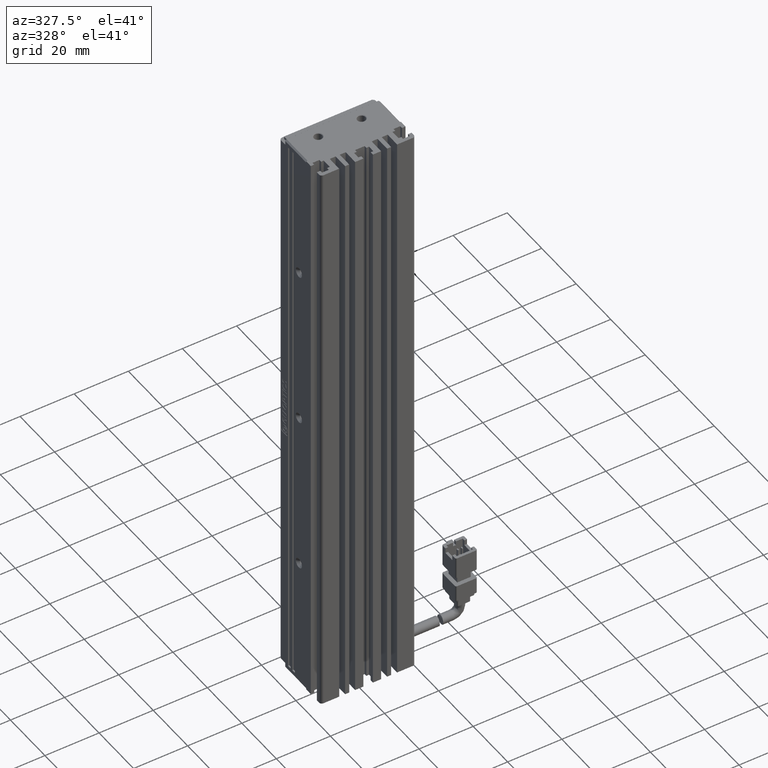
[diagram: clean part render]
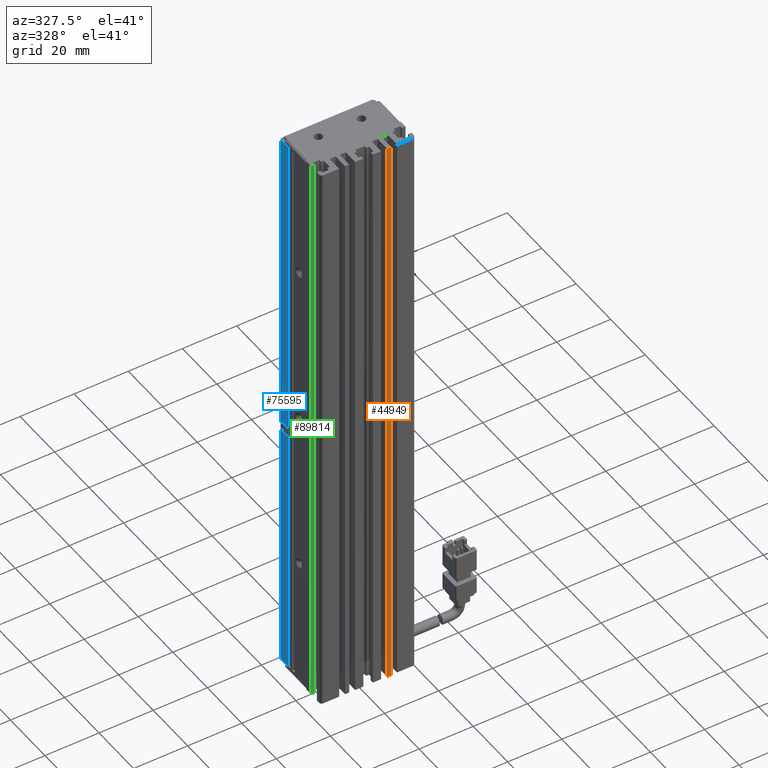
[diagram: same view with three faces highlighted in distinct colors, each labeled with its STEP entity id]
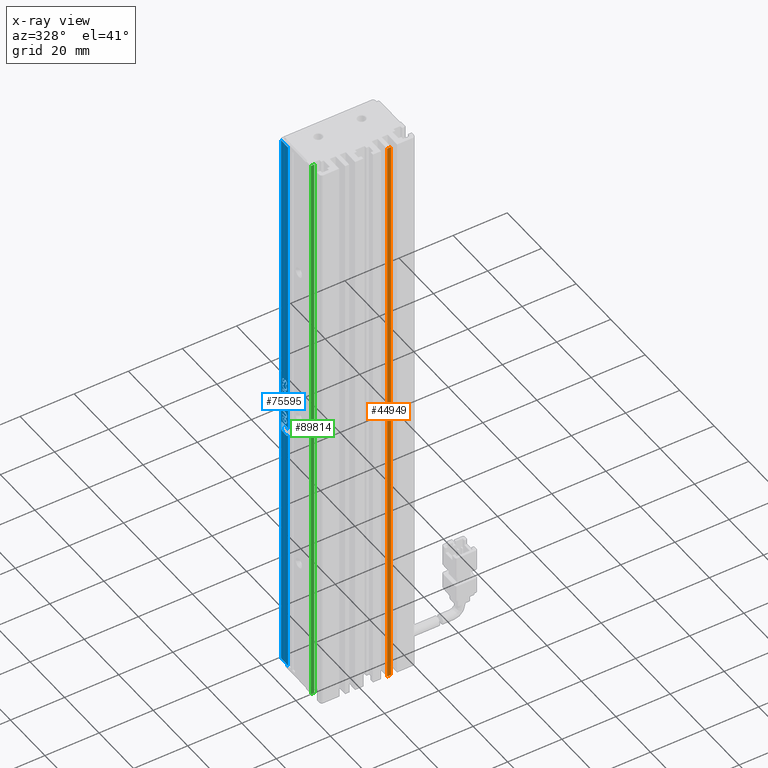
[diagram: x-ray of the same camera — body ghosted, the three highlighted faces saturated]
A machine part, auxiliary view with three faces highlighted in distinct colors.
The next image is the same camera in x-ray (body ghosted, the three faces saturated) — at least one of them is partly hidden behind the body in this view.
Their STEP definitions:

[orange] entity #44949 — the highlighted planar face has unit normal (0, 1, 0).
#227 = EDGE_CURVE ( 'NONE', #54300, #3280, #14841, .T. ) ;
#3280 = VERTEX_POINT ( 'NONE', #76385 ) ;
#5404 = FACE_OUTER_BOUND ( 'NONE', #55401, .T. ) ;
#7070 = DIRECTION ( 'NONE',  ( 0.0000000000000000000, -0.0000000000000000000, 1.000000000000000000 ) ) ;
#9142 = LINE ( 'NONE', #42142, #54022 ) ;
#10304 = CARTESIAN_POINT ( 'NONE',  ( 49.42537974683541800, 10.99073232304837000, -224.0000000000000000 ) ) ;
#14071 = DIRECTION ( 'NONE',  ( 0.0000000000000000000, 0.0000000000000000000, 1.000000000000000000 ) ) ;
#14841 = LINE ( 'NONE', #43643, #19188 ) ;
#17118 = CARTESIAN_POINT ( 'NONE',  ( 49.42537974683541800, 10.99073232304837000, -6.000000000000005300 ) ) ;
#19188 = VECTOR ( 'NONE', #50421, 1000.000000000000000 ) ;
#20732 = EDGE_CURVE ( 'NONE', #63833, #54300, #65136, .T. ) ;
#22604 = ORIENTED_EDGE ( 'NONE', *, *, #84309, .F. ) ;
#23053 = AXIS2_PLACEMENT_3D ( 'NONE', #63649, #70041, #7070 ) ;
#31184 = CARTESIAN_POINT ( 'NONE',  ( 47.92537974683541800, 10.99073232304837000, -6.000000000000005300 ) ) ;
#31210 = ORIENTED_EDGE ( 'NONE', *, *, #20732, .F. ) ;
#34853 = CARTESIAN_POINT ( 'NONE',  ( 47.92537974683541800, 10.99073232304837000, -6.000000000000005300 ) ) ;
#36420 = CARTESIAN_POINT ( 'NONE',  ( 47.92537974683541800, 10.99073232304837000, -224.0000000000000000 ) ) ;
#42142 = CARTESIAN_POINT ( 'NONE',  ( 40.92537974683542500, 10.99073232304837000, -224.0000000000000000 ) ) ;
#42746 = DIRECTION ( 'NONE',  ( -1.000000000000000000, -0.0000000000000000000, 0.0000000000000000000 ) ) ;
#43136 = PLANE ( 'NONE',  #23053 ) ;
#43643 = CARTESIAN_POINT ( 'NONE',  ( 40.92537974683542500, 10.99073232304837000, -6.000000000000005300 ) ) ;
#44004 = ORIENTED_EDGE ( 'NONE', *, *, #227, .F. ) ;
#44949 = ADVANCED_FACE ( 'NONE', ( #5404 ), #43136, .F. ) ;
#50421 = DIRECTION ( 'NONE',  ( 1.000000000000000000, 0.0000000000000000000, -0.0000000000000000000 ) ) ;
#54022 = VECTOR ( 'NONE', #42746, 1000.000000000000000 ) ;
#54300 = VERTEX_POINT ( 'NONE', #31184 ) ;
#55083 = LINE ( 'NONE', #17118, #90034 ) ;
#55401 = EDGE_LOOP ( 'NONE', ( #85317, #44004, #31210, #22604 ) ) ;
#59746 = VERTEX_POINT ( 'NONE', #10304 ) ;
#63649 = CARTESIAN_POINT ( 'NONE',  ( 40.92537974683542500, 10.99073232304837000, -6.000000000000005300 ) ) ;
#63833 = VERTEX_POINT ( 'NONE', #36420 ) ;
#63921 = EDGE_CURVE ( 'NONE', #59746, #3280, #55083, .T. ) ;
#65136 = LINE ( 'NONE', #34853, #80421 ) ;
#66112 = DIRECTION ( 'NONE',  ( 0.0000000000000000000, 0.0000000000000000000, 1.000000000000000000 ) ) ;
#70041 = DIRECTION ( 'NONE',  ( 0.0000000000000000000, 1.000000000000000000, 0.0000000000000000000 ) ) ;
#76385 = CARTESIAN_POINT ( 'NONE',  ( 49.42537974683541800, 10.99073232304837000, -6.000000000000005300 ) ) ;
#80421 = VECTOR ( 'NONE', #14071, 1000.000000000000000 ) ;
#84309 = EDGE_CURVE ( 'NONE', #59746, #63833, #9142, .T. ) ;
#85317 = ORIENTED_EDGE ( 'NONE', *, *, #63921, .T. ) ;
#90034 = VECTOR ( 'NONE', #66112, 1000.000000000000000 ) ;

[blue] entity #75595 — the highlighted planar face has unit normal (-1, 0, 0).
#159 = LINE ( 'NONE', #34016, #70185 ) ;
#267 = CARTESIAN_POINT ( 'NONE',  ( 23.42537974683542100, 31.96109976776472500, -108.9810248200882500 ) ) ;
#347 = B_SPLINE_CURVE_WITH_KNOTS ( 'NONE', 3,
 ( #15714, #30950, #23626, #64993 ),
 .UNSPECIFIED., .F., .F.,
 ( 4, 4 ),
 ( 0.0000000000000000000, 1.000000000000000000 ),
 .UNSPECIFIED. ) ;
#469 = CARTESIAN_POINT ( 'NONE',  ( 23.42537974683542100, 30.69365790729960300, -116.2814574863944000 ) ) ;
#688 = CARTESIAN_POINT ( 'NONE',  ( 23.42537974683542100, 31.37189614418444700, -108.9665575404777900 ) ) ;
#816 = CARTESIAN_POINT ( 'NONE',  ( 23.42537974683542100, 31.60063465148565200, -107.1044023214401300 ) ) ;
#882 = EDGE_CURVE ( 'NONE', #60192, #37922, #47448, .T. ) ;
#988 = B_SPLINE_CURVE_WITH_KNOTS ( 'NONE', 3,
 ( #49004, #70017, #28061, #77017 ),
 .UNSPECIFIED., .F., .F.,
 ( 4, 4 ),
 ( 6.000000000000000000, 7.000000000000000000 ),
 .UNSPECIFIED. ) ;
#1222 = ORIENTED_EDGE ( 'NONE', *, *, #75533, .F. ) ;
#1351 = VECTOR ( 'NONE', #35808, 1000.000000000000000 ) ;
#1425 = FACE_BOUND ( 'NONE', #30243, .T. ) ;
#1809 = VERTEX_POINT ( 'NONE', #41024 ) ;
#1873 = VERTEX_POINT ( 'NONE', #34277 ) ;
#2117 = EDGE_CURVE ( 'NONE', #60896, #64137, #50337, .T. ) ;
#2183 = LINE ( 'NONE', #8172, #53677 ) ;
#2224 = EDGE_CURVE ( 'NONE', #47304, #42420, #46846, .T. ) ;
#2454 = CARTESIAN_POINT ( 'NONE',  ( 23.42537974683542100, 31.15096591162624400, -121.5570794442092900 ) ) ;
#2531 = CARTESIAN_POINT ( 'NONE',  ( 23.42537974683542100, 33.24016953520655400, -119.0692481840687800 ) ) ;
#2617 = VECTOR ( 'NONE', #17995, 1000.000000000000000 ) ;
#2819 = CARTESIAN_POINT ( 'NONE',  ( 23.42537974683542100, 32.18203000032293200, -120.9892725215486100 ) ) ;
#3160 = EDGE_LOOP ( 'NONE', ( #13812, #33364, #55384, #13626, #29938, #13358, #30972, #90273 ) ) ;
#3593 = EDGE_CURVE ( 'NONE', #21146, #13146, #12191, .T. ) ;
#3840 = LINE ( 'NONE', #41936, #9303 ) ;
#3956 = CARTESIAN_POINT ( 'NONE',  ( 23.42537974683542100, 32.49598348869494700, -105.2168955610293000 ) ) ;
#4298 = CARTESIAN_POINT ( 'NONE',  ( 23.42537974683542100, 33.99073232304837700, -222.0000000000000000 ) ) ;
#4388 = CARTESIAN_POINT ( 'NONE',  ( 23.42537974683542100, 30.17471088155887000, -124.4911980244126100 ) ) ;
#4985 = CARTESIAN_POINT ( 'NONE',  ( 23.42537974683542100, 30.17471088155887000, -124.0426035368832300 ) ) ;
#5940 = VERTEX_POINT ( 'NONE', #8283 ) ;
#6129 = ORIENTED_EDGE ( 'NONE', *, *, #66371, .F. ) ;
#6218 = B_SPLINE_CURVE_WITH_KNOTS ( 'NONE', 3,
 ( #6262, #55540, #20255, #13563 ),
 .UNSPECIFIED., .F., .F.,
 ( 4, 4 ),
 ( 4.000000000000000000, 5.000000000000000000 ),
 .UNSPECIFIED. ) ;
#6262 = CARTESIAN_POINT ( 'NONE',  ( 23.42537974683542100, 32.58900674450889300, -107.0501162208454200 ) ) ;
#6341 = LINE ( 'NONE', #89532, #86175 ) ;
#6525 = CARTESIAN_POINT ( 'NONE',  ( 23.42537974683542100, 31.01923930264848700, -106.1823498606506700 ) ) ;
#6705 = CARTESIAN_POINT ( 'NONE',  ( 23.42537974683542100, 32.75943670665056800, -107.9469523484821100 ) ) ;
#6758 = LINE ( 'NONE', #30101, #41746 ) ;
#6907 = VERTEX_POINT ( 'NONE', #24663 ) ;
#7277 = CARTESIAN_POINT ( 'NONE',  ( 23.42537974683542100, 29.99073232304837300, -6.000000000000005300 ) ) ;
#7408 = B_SPLINE_CURVE_WITH_KNOTS ( 'NONE', 3,
 ( #44797, #64698, #37100, #23001 ),
 .UNSPECIFIED., .F., .F.,
 ( 4, 4 ),
 ( 1.000000000000000000, 2.000000000000000000 ),
 .UNSPECIFIED. ) ;
#7623 = LINE ( 'NONE', #78476, #63455 ) ;
#7707 = CARTESIAN_POINT ( 'NONE',  ( 23.42537974683542100, 31.24398916744019400, -120.1323228190066000 ) ) ;
#7831 = CARTESIAN_POINT ( 'NONE',  ( 23.42537974683542100, 30.69365790729960300, -119.6116359612456400 ) ) ;
#8017 = CARTESIAN_POINT ( 'NONE',  ( 23.42537974683542100, 33.24016953520655400, -110.3261438033223400 ) ) ;
#8019 = B_SPLINE_CURVE_WITH_KNOTS ( 'NONE', 3,
 ( #89973, #27200, #21096, #27496 ),
 .UNSPECIFIED., .F., .F.,
 ( 4, 4 ),
 ( 10.00000000000000000, 11.00000000000000000 ),
 .UNSPECIFIED. ) ;
#8023 = DIRECTION ( 'NONE',  ( -0.0000000000000000000, -0.0000000000000000000, -1.000000000000000000 ) ) ;
#8172 = CARTESIAN_POINT ( 'NONE',  ( 23.42537974683542100, 32.18203000032293200, -122.1716684112184600 ) ) ;
#8240 = ORIENTED_EDGE ( 'NONE', *, *, #89939, .F. ) ;
#8283 = CARTESIAN_POINT ( 'NONE',  ( 23.42537974683542100, 31.03086720962521700, -108.2542130299314400 ) ) ;
#8581 = VERTEX_POINT ( 'NONE', #50258 ) ;
#8638 = CARTESIAN_POINT ( 'NONE',  ( 23.42537974683542100, 31.67040209334614400, -120.1323228190066000 ) ) ;
#8798 = CARTESIAN_POINT ( 'NONE',  ( 23.42537974683542100, 31.98435558171818700, -109.5125283355021300 ) ) ;
#8808 = EDGE_CURVE ( 'NONE', #83490, #37456, #20410, .T. ) ;
#9067 = VECTOR ( 'NONE', #54742, 1000.000000000000000 ) ;
#9265 = CARTESIAN_POINT ( 'NONE',  ( 23.42537974683542100, 31.16259381860297100, -109.4764277405858100 ) ) ;
#9280 = VERTEX_POINT ( 'NONE', #30149 ) ;
#9303 = VECTOR ( 'NONE', #49054, 1000.000000000000000 ) ;
#9508 = VERTEX_POINT ( 'NONE', #39916 ) ;
#9658 = CARTESIAN_POINT ( 'NONE',  ( 23.42537974683542100, 31.83319279102058600, -121.4774418022407300 ) ) ;
#9685 = CARTESIAN_POINT ( 'NONE',  ( 23.42537974683542100, 32.58900674450889300, -106.5186127054316600 ) ) ;
#10151 = ORIENTED_EDGE ( 'NONE', *, *, #11636, .F. ) ;
#10159 = CARTESIAN_POINT ( 'NONE',  ( 23.42537974683542100, 32.91458813985772700, -106.4065926946150600 ) ) ;
#10397 = VERTEX_POINT ( 'NONE', #25019 ) ;
#10403 = VERTEX_POINT ( 'NONE', #4298 ) ;
#10479 = LINE ( 'NONE', #86105, #60806 ) ;
#10645 = VERTEX_POINT ( 'NONE', #28646 ) ;
#10709 = CARTESIAN_POINT ( 'NONE',  ( 23.42537974683542100, 31.06957056278913100, -122.4428284977521200 ) ) ;
#10726 = CARTESIAN_POINT ( 'NONE',  ( 23.42537974683542100, 31.83319279102058600, -122.1716684112184600 ) ) ;
#10810 = VERTEX_POINT ( 'NONE', #29266 ) ;
#10851 = ORIENTED_EDGE ( 'NONE', *, *, #54112, .F. ) ;
#10944 = CARTESIAN_POINT ( 'NONE',  ( 23.42537974683542100, 32.42621604683445500, -112.9403947497799000 ) ) ;
#10977 = VECTOR ( 'NONE', #59409, 1000.000000000000000 ) ;
#11250 = CARTESIAN_POINT ( 'NONE',  ( 23.42537974683542100, 31.59664600897626500, -113.2080394225761200 ) ) ;
#11384 = VERTEX_POINT ( 'NONE', #26105 ) ;
#11464 = CARTESIAN_POINT ( 'NONE',  ( 23.42537974683542500, 34.99073232304837700, -8.000000000000007100 ) ) ;
#11560 = VERTEX_POINT ( 'NONE', #71651 ) ;
#11636 = EDGE_CURVE ( 'NONE', #22257, #20313, #40937, .T. ) ;
#11808 = CARTESIAN_POINT ( 'NONE',  ( 23.42537974683542100, 33.22338127548393100, -123.8114702828415700 ) ) ;
#11823 = ORIENTED_EDGE ( 'NONE', *, *, #54606, .F. ) ;
#11885 = CARTESIAN_POINT ( 'NONE',  ( 23.42537974683542100, 32.89133232590420900, -111.9207219536739200 ) ) ;
#11913 = CARTESIAN_POINT ( 'NONE',  ( 23.42537974683542100, 33.03086720962519300, -121.1592968590282600 ) ) ;
#12067 = DIRECTION ( 'NONE',  ( 0.0000000000000000000, 1.000000000000000000, 0.0000000000000000000 ) ) ;
#12158 = ORIENTED_EDGE ( 'NONE', *, *, #12963, .F. ) ;
#12191 = B_SPLINE_CURVE_WITH_KNOTS ( 'NONE', 3,
 ( #77206, #27928, #84231, #469 ),
 .UNSPECIFIED., .F., .F.,
 ( 4, 4 ),
 ( 1.000000000000000000, 2.000000000000000000 ),
 .UNSPECIFIED. ) ;
#12393 = CARTESIAN_POINT ( 'NONE',  ( 23.42537974683542100, 31.97272767474145600, -115.1207625161401800 ) ) ;
#12461 = ORIENTED_EDGE ( 'NONE', *, *, #35276, .F. ) ;
#12479 = CARTESIAN_POINT ( 'NONE',  ( 23.42537974683542100, 32.89133232590420900, -111.4000350959131700 ) ) ;
#12482 = ORIENTED_EDGE ( 'NONE', *, *, #39653, .F. ) ;
#12635 = B_SPLINE_CURVE_WITH_KNOTS ( 'NONE', 3,
 ( #51603, #44565, #30720, #9685 ),
 .UNSPECIFIED., .F., .F.,
 ( 4, 4 ),
 ( 10.00000000000000000, 11.00000000000000000 ),
 .UNSPECIFIED. ) ;
#12663 = CARTESIAN_POINT ( 'NONE',  ( 23.42537974683542100, 33.22854162822982000, -115.5583639223057300 ) ) ;
#12806 = CARTESIAN_POINT ( 'NONE',  ( 23.42537974683542100, 31.25179744218331000, -120.9892725215486100 ) ) ;
#12814 = B_SPLINE_CURVE_WITH_KNOTS ( 'NONE', 3,
 ( #39474, #39184, #53626, #47180 ),
 .UNSPECIFIED., .F., .F.,
 ( 4, 4 ),
 ( 4.000000000000000000, 5.000000000000000000 ),
 .UNSPECIFIED. ) ;
#12825 = ORIENTED_EDGE ( 'NONE', *, *, #46263, .F. ) ;
#12963 = EDGE_CURVE ( 'NONE', #47621, #72914, #59497, .T. ) ;
#12996 = CARTESIAN_POINT ( 'NONE',  ( 23.42537974683542100, 31.38734368339478900, -122.6706543495638600 ) ) ;
#13034 = CARTESIAN_POINT ( 'NONE',  ( 23.42537974683542100, 31.67040209334614400, -119.0692481840687800 ) ) ;
#13111 = CARTESIAN_POINT ( 'NONE',  ( 23.42537974683542100, 32.54249511660192000, -121.5424769563782100 ) ) ;
#13146 = VERTEX_POINT ( 'NONE', #64113 ) ;
#13225 = CARTESIAN_POINT ( 'NONE',  ( 23.42537974683542100, 31.40296023288102100, -105.6833639223057000 ) ) ;
#13346 = EDGE_CURVE ( 'NONE', #24206, #90683, #33899, .T. ) ;
#13358 = ORIENTED_EDGE ( 'NONE', *, *, #40456, .F. ) ;
#13483 = CARTESIAN_POINT ( 'NONE',  ( 23.42537974683542100, 31.01923930264848700, -106.1823498606506700 ) ) ;
#13556 = VERTEX_POINT ( 'NONE', #35841 ) ;
#13563 = CARTESIAN_POINT ( 'NONE',  ( 23.42537974683542100, 31.78668116311355600, -106.1280637600558500 ) ) ;
#13626 = ORIENTED_EDGE ( 'NONE', *, *, #50859, .F. ) ;
#13788 = DIRECTION ( 'NONE',  ( -0.0000000000000000000, 1.000000000000000000, -0.0000000000000000000 ) ) ;
#13812 = ORIENTED_EDGE ( 'NONE', *, *, #31944, .F. ) ;
#13889 = CARTESIAN_POINT ( 'NONE',  ( 23.42537974683542100, 31.98435558171818700, -122.6923552689798100 ) ) ;
#13959 = EDGE_CURVE ( 'NONE', #33691, #83490, #52071, .T. ) ;
#14127 = CARTESIAN_POINT ( 'NONE',  ( 23.42537974683542100, 31.03086720962521700, -108.2542130299314400 ) ) ;
#14272 = VECTOR ( 'NONE', #46481, 1000.000000000000000 ) ;
#14332 = CARTESIAN_POINT ( 'NONE',  ( 23.42537974683542100, 30.69365790729960300, -119.6116359612456400 ) ) ;
#14415 = ORIENTED_EDGE ( 'NONE', *, *, #37290, .F. ) ;
#14719 = VECTOR ( 'NONE', #40608, 1000.000000000000000 ) ;
#15005 = CARTESIAN_POINT ( 'NONE',  ( 23.42537974683542100, 33.26724498139368100, -106.7355542954803700 ) ) ;
#15714 = CARTESIAN_POINT ( 'NONE',  ( 23.42537974683542100, 30.69365790729960300, -116.2814574863944000 ) ) ;
#15719 = ORIENTED_EDGE ( 'NONE', *, *, #85436, .F. ) ;
#15962 = CARTESIAN_POINT ( 'NONE',  ( 23.42537974683542100, 30.69365790729960300, -108.3735342846637300 ) ) ;
#16070 = VERTEX_POINT ( 'NONE', #79040 ) ;
#16312 = CARTESIAN_POINT ( 'NONE',  ( 23.42537974683542100, 33.24016953520655400, -113.7865277946691400 ) ) ;
#16483 = CARTESIAN_POINT ( 'NONE',  ( 23.42537974683542100, 32.91458813985772700, -108.3627176270111100 ) ) ;
#16744 = EDGE_CURVE ( 'NONE', #66858, #5940, #12814, .T. ) ;
#16789 = B_SPLINE_CURVE_WITH_KNOTS ( 'NONE', 3,
 ( #13225, #27208, #90586, #6525 ),
 .UNSPECIFIED., .F., .F.,
 ( 4, 4 ),
 ( 2.000000000000000000, 3.000000000000000000 ),
 .UNSPECIFIED. ) ;
#16907 = EDGE_CURVE ( 'NONE', #75717, #70933, #66184, .T. ) ;
#17319 = EDGE_CURVE ( 'NONE', #11560, #57911, #19797, .T. ) ;
#17374 = CARTESIAN_POINT ( 'NONE',  ( 23.42537974683542100, 31.67040209334614400, -120.1323228190066000 ) ) ;
#17753 = FACE_BOUND ( 'NONE', #78430, .T. ) ;
#17825 = DIRECTION ( 'NONE',  ( -0.0000000000000000000, -1.000000000000000000, -0.0000000000000000000 ) ) ;
#17995 = DIRECTION ( 'NONE',  ( -0.0000000000000000000, -1.000000000000000000, -0.0000000000000000000 ) ) ;
#18338 = DIRECTION ( 'NONE',  ( -0.0000000000000000000, -1.000000000000000000, -0.0000000000000000000 ) ) ;
#18397 = EDGE_CURVE ( 'NONE', #49107, #47940, #53692, .T. ) ;
#18829 = CARTESIAN_POINT ( 'NONE',  ( 23.42537974683542100, 33.26724498139368100, -107.8240480759021800 ) ) ;
#18832 = DIRECTION ( 'NONE',  ( -0.0000000000000000000, 1.000000000000000000, -0.0000000000000000000 ) ) ;
#18886 = CARTESIAN_POINT ( 'NONE',  ( 23.42537974683542100, 31.22854162822984800, -119.0548485085685100 ) ) ;
#18943 = ORIENTED_EDGE ( 'NONE', *, *, #56371, .F. ) ;
#19096 = EDGE_CURVE ( 'NONE', #68024, #77703, #48046, .T. ) ;
#19184 = ORIENTED_EDGE ( 'NONE', *, *, #60571, .F. ) ;
#19396 = CARTESIAN_POINT ( 'NONE',  ( 23.42537974683542100, 33.67213886008198600, -123.8114702828415700 ) ) ;
#19402 = ORIENTED_EDGE ( 'NONE', *, *, #60922, .F. ) ;
#19797 = B_SPLINE_CURVE_WITH_KNOTS ( 'NONE', 3,
 ( #46791, #33248, #81228, #81533 ),
 .UNSPECIFIED., .F., .F.,
 ( 4, 4 ),
 ( 11.00000000000000000, 12.00000000000000000 ),
 .UNSPECIFIED. ) ;
#19882 = CARTESIAN_POINT ( 'NONE',  ( 23.42537974683542100, 30.85447261649664700, -127.5398955222772300 ) ) ;
#19952 = FACE_BOUND ( 'NONE', #90710, .T. ) ;
#20211 = B_SPLINE_CURVE_WITH_KNOTS ( 'NONE', 3,
 ( #73330, #73041, #52032, #16483 ),
 .UNSPECIFIED., .F., .F.,
 ( 4, 4 ),
 ( 2.000000000000000000, 3.000000000000000000 ),
 .UNSPECIFIED. ) ;
#20255 = CARTESIAN_POINT ( 'NONE',  ( 23.42537974683542100, 31.90296023288096400, -106.7935586221435600 ) ) ;
#20313 = VERTEX_POINT ( 'NONE', #35876 ) ;
#20410 = B_SPLINE_CURVE_WITH_KNOTS ( 'NONE', 3,
 ( #24387, #2454, #80078, #80397 ),
 .UNSPECIFIED., .F., .F.,
 ( 4, 4 ),
 ( 4.000000000000000000, 5.000000000000000000 ),
 .UNSPECIFIED. ) ;
#20693 = CARTESIAN_POINT ( 'NONE',  ( 23.42537974683542100, 32.91458813985772700, -108.3627176270111100 ) ) ;
#21006 = CARTESIAN_POINT ( 'NONE',  ( 23.42537974683542100, 33.27505325613680000, -108.3952352040796800 ) ) ;
#21096 = CARTESIAN_POINT ( 'NONE',  ( 23.42537974683542100, 30.87970441892750600, -121.1340129217649100 ) ) ;
#21146 = VERTEX_POINT ( 'NONE', #36988 ) ;
#21382 = VERTEX_POINT ( 'NONE', #79462 ) ;
#21398 = CARTESIAN_POINT ( 'NONE',  ( 23.42537974683542100, 31.43784395381121000, -105.1517928027817600 ) ) ;
#21998 = CARTESIAN_POINT ( 'NONE',  ( 23.42537974683542100, 33.24016953520655400, -114.7953163290120800 ) ) ;
#22027 = CARTESIAN_POINT ( 'NONE',  ( 23.42537974683542100, 31.67040209334614400, -119.0692481840687800 ) ) ;
#22089 = CARTESIAN_POINT ( 'NONE',  ( 23.42537974683542100, 33.24016953520655400, -113.2152730623816000 ) ) ;
#22257 = VERTEX_POINT ( 'NONE', #60090 ) ;
#22268 = DIRECTION ( 'NONE',  ( -0.0000000000000000000, 1.000000000000000000, -0.0000000000000000000 ) ) ;
#22476 = CARTESIAN_POINT ( 'NONE',  ( 23.42537974683542100, 29.99073232304837300, -8.000000000000007100 ) ) ;
#22610 = CARTESIAN_POINT ( 'NONE',  ( 23.42537974683542100, 32.54249511660192000, -121.5424769563782100 ) ) ;
#22622 = VERTEX_POINT ( 'NONE', #85343 ) ;
#22834 = ORIENTED_EDGE ( 'NONE', *, *, #61518, .F. ) ;
#23001 = CARTESIAN_POINT ( 'NONE',  ( 23.42537974683542100, 33.08744251897440600, -127.5398955222772300 ) ) ;
#23210 = LINE ( 'NONE', #49958, #1351 ) ;
#23331 = CARTESIAN_POINT ( 'NONE',  ( 23.42537974683542100, 31.03086720962521700, -119.6008193035928400 ) ) ;
#23378 = VERTEX_POINT ( 'NONE', #87567 ) ;
#23626 = CARTESIAN_POINT ( 'NONE',  ( 23.42537974683542100, 31.16641345083670000, -115.1570659233873100 ) ) ;
#23646 = CARTESIAN_POINT ( 'NONE',  ( 23.42537974683542100, 33.25943670665062500, -105.6219793901260700 ) ) ;
#23879 = VERTEX_POINT ( 'NONE', #76191 ) ;
#23923 = CARTESIAN_POINT ( 'NONE',  ( 23.42537974683542100, 32.49598348869494700, -105.2168955610293000 ) ) ;
#24206 = VERTEX_POINT ( 'NONE', #48081 ) ;
#24317 = FACE_BOUND ( 'NONE', #86186, .T. ) ;
#24387 = CARTESIAN_POINT ( 'NONE',  ( 23.42537974683542100, 31.41458813985775200, -121.4774418022407300 ) ) ;
#24424 = CARTESIAN_POINT ( 'NONE',  ( 23.42537974683542100, 30.85447261649664700, -123.8114702828415700 ) ) ;
#24457 = ORIENTED_EDGE ( 'NONE', *, *, #48677, .F. ) ;
#24527 = CARTESIAN_POINT ( 'NONE',  ( 23.42537974683542100, 33.24016953520655400, -120.6530096767676200 ) ) ;
#24541 = LINE ( 'NONE', #82956, #78190 ) ;
#24550 = CARTESIAN_POINT ( 'NONE',  ( 23.42537974683542100, 33.24016953520655400, -110.6298890710347700 ) ) ;
#24652 = LINE ( 'NONE', #34478, #81542 ) ;
#24663 = CARTESIAN_POINT ( 'NONE',  ( 23.42537974683542100, 31.82156488404385500, -118.5485613263079200 ) ) ;
#24714 = CARTESIAN_POINT ( 'NONE',  ( 23.42537974683542100, 30.85447261649664700, -127.5398955222772300 ) ) ;
#25019 = CARTESIAN_POINT ( 'NONE',  ( 23.42537974683542100, 33.90313621518245000, -124.4911980244126100 ) ) ;
#25104 = ORIENTED_EDGE ( 'NONE', *, *, #31407, .F. ) ;
#26105 = CARTESIAN_POINT ( 'NONE',  ( 23.42537974683542100, 33.99073232304837700, -8.000000000000007100 ) ) ;
#26476 = CARTESIAN_POINT ( 'NONE',  ( 23.42537974683542100, 31.61226255846238300, -113.7865277946691400 ) ) ;
#26967 = ORIENTED_EDGE ( 'NONE', *, *, #46147, .F. ) ;
#26987 = CARTESIAN_POINT ( 'NONE',  ( 23.42537974683542100, 31.22073335348673200, -106.8368928568648800 ) ) ;
#27107 = ORIENTED_EDGE ( 'NONE', *, *, #90157, .F. ) ;
#27200 = CARTESIAN_POINT ( 'NONE',  ( 23.42537974683542100, 30.69365790729960300, -121.4774418022407300 ) ) ;
#27208 = CARTESIAN_POINT ( 'NONE',  ( 23.42537974683542100, 31.14714627939262900, -105.6906651662211700 ) ) ;
#27226 = DIRECTION ( 'NONE',  ( -0.0000000000000000000, 1.000000000000000000, -0.0000000000000000000 ) ) ;
#27348 = VECTOR ( 'NONE', #12067, 1000.000000000000000 ) ;
#27365 = CARTESIAN_POINT ( 'NONE',  ( 23.42537974683542100, 30.74016953520663300, -109.8162736032143300 ) ) ;
#27406 = VECTOR ( 'NONE', #18338, 1000.000000000000000 ) ;
#27434 = ORIENTED_EDGE ( 'NONE', *, *, #29920, .F. ) ;
#27477 = CARTESIAN_POINT ( 'NONE',  ( 23.42537974683542100, 33.24398916744022600, -117.0190859342040100 ) ) ;
#27496 = CARTESIAN_POINT ( 'NONE',  ( 23.42537974683542100, 31.25179744218331000, -120.9892725215486100 ) ) ;
#27672 = CARTESIAN_POINT ( 'NONE',  ( 23.42537974683542100, 33.24016953520655400, -114.7953163290120800 ) ) ;
#27678 = CARTESIAN_POINT ( 'NONE',  ( 23.42537974683542100, 32.49598348869494700, -105.2168955610293000 ) ) ;
#27809 = B_SPLINE_CURVE_WITH_KNOTS ( 'NONE', 3,
 ( #14332, #63593, #71184, #84033 ),
 .UNSPECIFIED., .F., .F.,
 ( 4, 4 ),
 ( 8.000000000000000000, 9.000000000000000000 ),
 .UNSPECIFIED. ) ;
#27928 = CARTESIAN_POINT ( 'NONE',  ( 23.42537974683542100, 31.16641345083670000, -117.4060518617324200 ) ) ;
#28061 = CARTESIAN_POINT ( 'NONE',  ( 23.42537974683542100, 30.83319279102058600, -107.6288074052695300 ) ) ;
#28174 = CARTESIAN_POINT ( 'NONE',  ( 23.42537974683542100, 30.74016953520663300, -111.9207219536739200 ) ) ;
#28646 = CARTESIAN_POINT ( 'NONE',  ( 23.42537974683542100, 32.89133232590420900, -110.6298890710347700 ) ) ;
#28682 = ORIENTED_EDGE ( 'NONE', *, *, #63224, .F. ) ;
#29053 = CARTESIAN_POINT ( 'NONE',  ( 23.42537974683542100, 33.27505325613680000, -106.1714655988877400 ) ) ;
#29057 = CARTESIAN_POINT ( 'NONE',  ( 23.42537974683542100, 30.72472199599617700, -122.7863925864485300 ) ) ;
#29112 = VECTOR ( 'NONE', #86522, 1000.000000000000000 ) ;
#29266 = CARTESIAN_POINT ( 'NONE',  ( 23.42537974683542100, 30.74016953520663300, -110.3261438033223400 ) ) ;
#29920 = EDGE_CURVE ( 'NONE', #57911, #1873, #12635, .T. ) ;
#29938 = ORIENTED_EDGE ( 'NONE', *, *, #51624, .F. ) ;
#29946 = CARTESIAN_POINT ( 'NONE',  ( 23.42537974683542100, 33.24016953520655400, -109.8162736032143300 ) ) ;
#30101 = CARTESIAN_POINT ( 'NONE',  ( 23.42537974683542500, 34.99073232304837700, -222.0000000000000000 ) ) ;
#30149 = CARTESIAN_POINT ( 'NONE',  ( 23.42537974683542100, 33.24016953520655400, -120.1323228190066000 ) ) ;
#30243 = EDGE_LOOP ( 'NONE', ( #37411, #15719, #12482, #68999, #24457, #19184, #88833, #43215 ) ) ;
#30622 = LINE ( 'NONE', #69117, #87622 ) ;
#30643 = EDGE_CURVE ( 'NONE', #40676, #21382, #77698, .T. ) ;
#30691 = CARTESIAN_POINT ( 'NONE',  ( 23.42537974683542100, 30.74016953520663300, -111.9207219536739200 ) ) ;
#30692 = VECTOR ( 'NONE', #56653, 1000.000000000000000 ) ;
#30720 = CARTESIAN_POINT ( 'NONE',  ( 23.42537974683542100, 32.39515195813788000, -106.5332151932629200 ) ) ;
#30862 = B_SPLINE_CURVE_WITH_KNOTS ( 'NONE', 3,
 ( #73389, #80121, #31515, #22610 ),
 .UNSPECIFIED., .F., .F.,
 ( 4, 4 ),
 ( 1.000000000000000000, 2.000000000000000000 ),
 .UNSPECIFIED. ) ;
#30943 = CARTESIAN_POINT ( 'NONE',  ( 23.42537974683542100, 31.60445428371926700, -105.6833639223057000 ) ) ;
#30950 = CARTESIAN_POINT ( 'NONE',  ( 23.42537974683542100, 30.74016953520663300, -115.5438290385848500 ) ) ;
#30972 = ORIENTED_EDGE ( 'NONE', *, *, #41618, .F. ) ;
#30993 = CARTESIAN_POINT ( 'NONE',  ( 23.42537974683542100, 30.74016953520663300, -114.7953163290120800 ) ) ;
#31301 = EDGE_CURVE ( 'NONE', #1809, #6907, #27809, .T. ) ;
#31407 = EDGE_CURVE ( 'NONE', #46713, #73452, #47921, .T. ) ;
#31515 = CARTESIAN_POINT ( 'NONE',  ( 23.42537974683542100, 32.79830907009025500, -121.6221822024571300 ) ) ;
#31639 = ORIENTED_EDGE ( 'NONE', *, *, #76224, .F. ) ;
#31944 = EDGE_CURVE ( 'NONE', #10645, #65891, #55467, .T. ) ;
#32228 = DIRECTION ( 'NONE',  ( -0.0000000000000000000, 1.000000000000000000, -0.0000000000000000000 ) ) ;
#32775 = VERTEX_POINT ( 'NONE', #267 ) ;
#32864 = LINE ( 'NONE', #39365, #14272 ) ;
#33248 = CARTESIAN_POINT ( 'NONE',  ( 23.42537974683542100, 31.83319279102058600, -105.1517928027817600 ) ) ;
#33329 = LINE ( 'NONE', #26476, #14719 ) ;
#33364 = ORIENTED_EDGE ( 'NONE', *, *, #40928, .F. ) ;
#33377 = CARTESIAN_POINT ( 'NONE',  ( 23.42537974683542100, 32.91458813985772700, -108.3627176270111100 ) ) ;
#33415 = LINE ( 'NONE', #46361, #41052 ) ;
#33427 = LINE ( 'NONE', #71823, #71731 ) ;
#33477 = LINE ( 'NONE', #7277, #90421 ) ;
#33691 = VERTEX_POINT ( 'NONE', #9658 ) ;
#33770 = ORIENTED_EDGE ( 'NONE', *, *, #2224, .F. ) ;
#33847 = VECTOR ( 'NONE', #59989, 1000.000000000000000 ) ;
#33899 = B_SPLINE_CURVE_WITH_KNOTS ( 'NONE', 3,
 ( #46353, #88797, #40149, #74392 ),
 .UNSPECIFIED., .F., .F.,
 ( 4, 4 ),
 ( 2.000000000000000000, 3.000000000000000000 ),
 .UNSPECIFIED. ) ;
#34016 = CARTESIAN_POINT ( 'NONE',  ( 23.42537974683542100, 30.17471088155887000, -124.4911980244126100 ) ) ;
#34073 = CARTESIAN_POINT ( 'NONE',  ( 23.42537974683542100, 32.54249511660192000, -121.0001567833117200 ) ) ;
#34277 = CARTESIAN_POINT ( 'NONE',  ( 23.42537974683542100, 32.58900674450889300, -106.5186127054316600 ) ) ;
#34478 = CARTESIAN_POINT ( 'NONE',  ( 23.42537974683542100, 31.61226255846238300, -114.2855137330142100 ) ) ;
#35146 = CARTESIAN_POINT ( 'NONE',  ( 23.42537974683542100, 31.15877418636935700, -107.1044023214401300 ) ) ;
#35276 = EDGE_CURVE ( 'NONE', #67161, #67798, #85351, .T. ) ;
#35374 = DIRECTION ( 'NONE',  ( 0.0000000000000000000, 0.0000000000000000000, 1.000000000000000000 ) ) ;
#35482 = ORIENTED_EDGE ( 'NONE', *, *, #56812, .F. ) ;
#35508 = B_SPLINE_CURVE_WITH_KNOTS ( 'NONE', 3,
 ( #69257, #61363, #26987, #82370 ),
 .UNSPECIFIED., .F., .F.,
 ( 4, 4 ),
 ( 1.000000000000000000, 2.000000000000000000 ),
 .UNSPECIFIED. ) ;
#35717 = ORIENTED_EDGE ( 'NONE', *, *, #84744, .F. ) ;
#35797 = CARTESIAN_POINT ( 'NONE',  ( 23.42537974683542100, 30.94183259632065500, -105.1446943711969500 ) ) ;
#35808 = DIRECTION ( 'NONE',  ( -0.0000000000000000000, -0.0000000000000000000, 1.000000000000000000 ) ) ;
#35841 = CARTESIAN_POINT ( 'NONE',  ( 23.42537974683542100, 33.90313621518245000, -126.8601066235564600 ) ) ;
#35876 = CARTESIAN_POINT ( 'NONE',  ( 23.42537974683542100, 33.24016953520655400, -113.7865277946691400 ) ) ;
#35905 = ORIENTED_EDGE ( 'NONE', *, *, #54197, .F. ) ;
#35938 = ORIENTED_EDGE ( 'NONE', *, *, #62692, .F. ) ;
#36028 = CARTESIAN_POINT ( 'NONE',  ( 23.42537974683542100, 31.41458813985775200, -121.4774418022407300 ) ) ;
#36269 = VERTEX_POINT ( 'NONE', #84660 ) ;
#36316 = CARTESIAN_POINT ( 'NONE',  ( 23.42537974683542100, 31.40296023288102100, -105.6833639223057000 ) ) ;
#36448 = ORIENTED_EDGE ( 'NONE', *, *, #90531, .T. ) ;
#36799 = VERTEX_POINT ( 'NONE', #30691 ) ;
#36940 = VECTOR ( 'NONE', #65681, 1000.000000000000000 ) ;
#36955 = LINE ( 'NONE', #29946, #88414 ) ;
#36963 = CARTESIAN_POINT ( 'NONE',  ( 23.42537974683542100, 30.69365790729960300, -106.1064304447502200 ) ) ;
#36978 = CARTESIAN_POINT ( 'NONE',  ( 23.42537974683542100, 31.58900674450892200, -107.4189642468053600 ) ) ;
#36988 = CARTESIAN_POINT ( 'NONE',  ( 23.42537974683542100, 31.97272767474145600, -117.4421524566485100 ) ) ;
#37100 = CARTESIAN_POINT ( 'NONE',  ( 23.42537974683542100, 33.53607099403129900, -127.5398955222772300 ) ) ;
#37137 = DIRECTION ( 'NONE',  ( 0.0000000000000000000, 1.000000000000000000, 0.0000000000000000000 ) ) ;
#37290 = EDGE_CURVE ( 'NONE', #60916, #66858, #86592, .T. ) ;
#37411 = ORIENTED_EDGE ( 'NONE', *, *, #19096, .F. ) ;
#37456 = VERTEX_POINT ( 'NONE', #79797 ) ;
#37661 = CARTESIAN_POINT ( 'NONE',  ( 23.42537974683542100, 30.85447261649664700, -127.5398955222772300 ) ) ;
#37922 = VERTEX_POINT ( 'NONE', #36316 ) ;
#38100 = CARTESIAN_POINT ( 'NONE',  ( 23.42537974683542100, 32.89133232590420900, -110.6298890710347700 ) ) ;
#38407 = EDGE_CURVE ( 'NONE', #47940, #60896, #2183, .T. ) ;
#38502 = CARTESIAN_POINT ( 'NONE',  ( 23.42537974683542100, 31.03086720962521700, -122.0089453176544900 ) ) ;
#38875 = VERTEX_POINT ( 'NONE', #13111 ) ;
#38935 = EDGE_CURVE ( 'NONE', #47738, #50557, #56090, .T. ) ;
#39184 = CARTESIAN_POINT ( 'NONE',  ( 23.42537974683542100, 31.20129717176688900, -107.6649080001855200 ) ) ;
#39365 = CARTESIAN_POINT ( 'NONE',  ( 23.42537974683542100, 32.89133232590420900, -111.4000350959131700 ) ) ;
#39474 = CARTESIAN_POINT ( 'NONE',  ( 23.42537974683542100, 31.58900674450892200, -107.4189642468053600 ) ) ;
#39528 = CARTESIAN_POINT ( 'NONE',  ( 23.42537974683542100, 30.40581016524445700, -123.8114702828415700 ) ) ;
#39647 = EDGE_CURVE ( 'NONE', #13146, #49667, #347, .T. ) ;
#39653 = EDGE_CURVE ( 'NONE', #13556, #53015, #7408, .T. ) ;
#39916 = CARTESIAN_POINT ( 'NONE',  ( 23.42537974683542100, 33.24016953520655400, -109.8162736032143300 ) ) ;
#40149 = CARTESIAN_POINT ( 'NONE',  ( 23.42537974683542100, 32.88734368339481800, -122.4574309855830900 ) ) ;
#40234 = CARTESIAN_POINT ( 'NONE',  ( 23.42537974683542100, 33.90313621518245000, -124.4911980244126100 ) ) ;
#40304 = LINE ( 'NONE', #63057, #84066 ) ;
#40311 = CARTESIAN_POINT ( 'NONE',  ( 23.42537974683542100, 33.24016953520655400, -119.0692481840687800 ) ) ;
#40456 = EDGE_CURVE ( 'NONE', #36269, #63761, #75693, .T. ) ;
#40589 = VERTEX_POINT ( 'NONE', #12479 ) ;
#40608 = DIRECTION ( 'NONE',  ( -0.0000000000000000000, -0.0000000000000000000, 1.000000000000000000 ) ) ;
#40676 = VERTEX_POINT ( 'NONE', #76954 ) ;
#40924 = DIRECTION ( 'NONE',  ( -0.0000000000000000000, -0.0000000000000000000, -1.000000000000000000 ) ) ;
#40928 = EDGE_CURVE ( 'NONE', #40589, #10645, #68734, .T. ) ;
#40937 = B_SPLINE_CURVE_WITH_KNOTS ( 'NONE', 3,
 ( #70795, #77795, #22089, #16312 ),
 .UNSPECIFIED., .F., .F.,
 ( 4, 4 ),
 ( 5.000000000000000000, 6.000000000000000000 ),
 .UNSPECIFIED. ) ;
#41024 = CARTESIAN_POINT ( 'NONE',  ( 23.42537974683542100, 30.69365790729960300, -119.6116359612456400 ) ) ;
#41052 = VECTOR ( 'NONE', #45439, 1000.000000000000000 ) ;
#41094 = CARTESIAN_POINT ( 'NONE',  ( 23.42537974683542100, 33.27505325613680000, -116.2814574863944000 ) ) ;
#41494 = ORIENTED_EDGE ( 'NONE', *, *, #2117, .F. ) ;
#41586 = CARTESIAN_POINT ( 'NONE',  ( 23.42537974683542100, 30.74016953520663300, -109.8162736032143300 ) ) ;
#41604 = CARTESIAN_POINT ( 'NONE',  ( 23.42537974683542100, 32.18203000032293200, -120.9892725215486100 ) ) ;
#41618 = EDGE_CURVE ( 'NONE', #48924, #36269, #10479, .T. ) ;
#41746 = VECTOR ( 'NONE', #37137, 1000.000000000000000 ) ;
#41906 = EDGE_LOOP ( 'NONE', ( #33770, #61753, #68754, #50498, #26967, #75474, #69699, #6129, #41494, #90578, #87130, #71528, #76692, #51382 ) ) ;
#41936 = CARTESIAN_POINT ( 'NONE',  ( 23.42537974683542100, 32.54249511660192000, -121.0001567833117200 ) ) ;
#42271 = CARTESIAN_POINT ( 'NONE',  ( 23.42537974683542100, 31.06176228804590500, -108.7243996172759200 ) ) ;
#42420 = VERTEX_POINT ( 'NONE', #77622 ) ;
#42573 = B_SPLINE_CURVE_WITH_KNOTS ( 'NONE', 3,
 ( #38502, #10709, #12996, #13889 ),
 .UNSPECIFIED., .F., .F.,
 ( 4, 4 ),
 ( 3.000000000000000000, 4.000000000000000000 ),
 .UNSPECIFIED. ) ;
#42579 = EDGE_CURVE ( 'NONE', #63520, #23879, #43177, .T. ) ;
#42728 = CARTESIAN_POINT ( 'NONE',  ( 23.42537974683542100, 32.92621604683451200, -122.0523471564863300 ) ) ;
#42779 = DIRECTION ( 'NONE',  ( -0.0000000000000000000, -1.000000000000000000, -0.0000000000000000000 ) ) ;
#42797 = ORIENTED_EDGE ( 'NONE', *, *, #3593, .F. ) ;
#42985 = CARTESIAN_POINT ( 'NONE',  ( 23.42537974683542100, 31.03850647409244700, -120.6747105961835600 ) ) ;
#43019 = CARTESIAN_POINT ( 'NONE',  ( 23.42537974683542100, 33.24016953520655400, -110.6298890710347700 ) ) ;
#43177 = B_SPLINE_CURVE_WITH_KNOTS ( 'NONE', 3,
 ( #46201, #66658, #18829, #67553 ),
 .UNSPECIFIED., .F., .F.,
 ( 4, 4 ),
 ( 9.000000000000000000, 10.00000000000000000 ),
 .UNSPECIFIED. ) ;
#43215 = ORIENTED_EDGE ( 'NONE', *, *, #84972, .F. ) ;
#43299 = ORIENTED_EDGE ( 'NONE', *, *, #87487, .F. ) ;
#43424 = CARTESIAN_POINT ( 'NONE',  ( 23.42537974683542100, 33.99073232304837700, -6.000000000000005300 ) ) ;
#43969 = ORIENTED_EDGE ( 'NONE', *, *, #76585, .T. ) ;
#44263 = EDGE_CURVE ( 'NONE', #60354, #75717, #35508, .T. ) ;
#44565 = CARTESIAN_POINT ( 'NONE',  ( 23.42537974683542100, 32.27505325613680000, -106.3957084328518500 ) ) ;
#44774 = CARTESIAN_POINT ( 'NONE',  ( 23.42537974683542100, 30.17471088155887000, -126.8601066235564600 ) ) ;
#44797 = CARTESIAN_POINT ( 'NONE',  ( 23.42537974683542100, 33.90313621518245000, -126.8601066235564600 ) ) ;
#45289 = ORIENTED_EDGE ( 'NONE', *, *, #70690, .F. ) ;
#45439 = DIRECTION ( 'NONE',  ( -0.0000000000000000000, -0.0000000000000000000, -1.000000000000000000 ) ) ;
#45683 = CARTESIAN_POINT ( 'NONE',  ( 23.42537974683542100, 7.083797468354437600, -6.000000000000005300 ) ) ;
#45765 = ORIENTED_EDGE ( 'NONE', *, *, #81339, .F. ) ;
#46147 = EDGE_CURVE ( 'NONE', #37456, #24206, #42573, .T. ) ;
#46201 = CARTESIAN_POINT ( 'NONE',  ( 23.42537974683542100, 32.44947186078796600, -107.3646781462105400 ) ) ;
#46263 = EDGE_CURVE ( 'NONE', #78194, #11560, #47886, .T. ) ;
#46294 = EDGE_CURVE ( 'NONE', #38875, #47304, #3840, .T. ) ;
#46353 = CARTESIAN_POINT ( 'NONE',  ( 23.42537974683542100, 31.98435558171818700, -122.6923552689798100 ) ) ;
#46361 = CARTESIAN_POINT ( 'NONE',  ( 23.42537974683542100, 33.90313621518245000, -126.8601066235564600 ) ) ;
#46481 = DIRECTION ( 'NONE',  ( -0.0000000000000000000, 1.000000000000000000, -0.0000000000000000000 ) ) ;
#46649 = CARTESIAN_POINT ( 'NONE',  ( 23.42537974683542100, 30.85447261649664700, -123.8114702828415700 ) ) ;
#46713 = VERTEX_POINT ( 'NONE', #27672 ) ;
#46791 = CARTESIAN_POINT ( 'NONE',  ( 23.42537974683542100, 31.43784395381121000, -105.1517928027817600 ) ) ;
#46846 = B_SPLINE_CURVE_WITH_KNOTS ( 'NONE', 3,
 ( #75768, #11913, #82488, #46847 ),
 .UNSPECIFIED., .F., .F.,
 ( 4, 4 ),
 ( 13.00000000000000000, 14.00000000000000000 ),
 .UNSPECIFIED. ) ;
#46847 = CARTESIAN_POINT ( 'NONE',  ( 23.42537974683542100, 33.27505325613680000, -122.0523471564863300 ) ) ;
#47065 = VERTEX_POINT ( 'NONE', #66871 ) ;
#47102 = CARTESIAN_POINT ( 'NONE',  ( 23.42537974683542100, 31.11226255846243700, -107.4189642468053600 ) ) ;
#47144 = CARTESIAN_POINT ( 'NONE',  ( 23.42537974683542100, 31.83319279102058600, -122.1716684112184600 ) ) ;
#47180 = CARTESIAN_POINT ( 'NONE',  ( 23.42537974683542100, 31.03086720962521700, -108.2542130299314400 ) ) ;
#47304 = VERTEX_POINT ( 'NONE', #34073 ) ;
#47448 = B_SPLINE_CURVE_WITH_KNOTS ( 'NONE', 3,
 ( #73153, #52443, #30943, #79865 ),
 .UNSPECIFIED., .F., .F.,
 ( 4, 4 ),
 ( 3.000000000000000000, 4.000000000000000000 ),
 .UNSPECIFIED. ) ;
#47621 = VERTEX_POINT ( 'NONE', #2531 ) ;
#47738 = VERTEX_POINT ( 'NONE', #33377 ) ;
#47741 = CARTESIAN_POINT ( 'NONE',  ( 23.42537974683542100, 32.18203000032293200, -122.1716684112184600 ) ) ;
#47886 = B_SPLINE_CURVE_WITH_KNOTS ( 'NONE', 3,
 ( #63370, #62753, #35797, #21398 ),
 .UNSPECIFIED., .F., .F.,
 ( 4, 4 ),
 ( 12.00000000000000000, 13.00000000000000000 ),
 .UNSPECIFIED. ) ;
#47921 = LINE ( 'NONE', #59324, #29112 ) ;
#47940 = VERTEX_POINT ( 'NONE', #41604 ) ;
#48045 = CARTESIAN_POINT ( 'NONE',  ( 23.42537974683542100, 32.91458813985772700, -108.1096078379357700 ) ) ;
#48046 = B_SPLINE_CURVE_WITH_KNOTS ( 'NONE', 3,
 ( #19882, #68859, #62444, #69470 ),
 .UNSPECIFIED., .F., .F.,
 ( 4, 4 ),
 ( 7.000000000000000000, 8.000000000000000000 ),
 .UNSPECIFIED. ) ;
#48081 = CARTESIAN_POINT ( 'NONE',  ( 23.42537974683542100, 31.98435558171818700, -122.6923552689798100 ) ) ;
#48213 = EDGE_CURVE ( 'NONE', #52218, #82476, #24652, .T. ) ;
#48677 = EDGE_CURVE ( 'NONE', #71129, #10397, #56724, .T. ) ;
#48682 = LINE ( 'NONE', #24714, #2617 ) ;
#48756 = CARTESIAN_POINT ( 'NONE',  ( 23.42537974683542100, 30.69365790729960300, -122.0197619753073300 ) ) ;
#48924 = VERTEX_POINT ( 'NONE', #56963 ) ;
#49004 = CARTESIAN_POINT ( 'NONE',  ( 23.42537974683542100, 30.69365790729960300, -108.3735342846637300 ) ) ;
#49054 = DIRECTION ( 'NONE',  ( -0.0000000000000000000, -0.0000000000000000000, 1.000000000000000000 ) ) ;
#49107 = VERTEX_POINT ( 'NONE', #12806 ) ;
#49588 = CARTESIAN_POINT ( 'NONE',  ( 23.42537974683542100, 30.17471088155887000, -124.4911980244126100 ) ) ;
#49667 = VERTEX_POINT ( 'NONE', #12393 ) ;
#49670 = CARTESIAN_POINT ( 'NONE',  ( 23.42537974683542100, 31.96109976776472500, -108.9810248200882500 ) ) ;
#49690 = ORIENTED_EDGE ( 'NONE', *, *, #56870, .F. ) ;
#49787 = CARTESIAN_POINT ( 'NONE',  ( 23.42537974683542100, 31.79830907009028400, -120.6530096767676200 ) ) ;
#49958 = CARTESIAN_POINT ( 'NONE',  ( 23.42537974683542100, 30.74016953520663300, -114.2855137330142100 ) ) ;
#50091 = CARTESIAN_POINT ( 'NONE',  ( 23.42537974683542100, 30.67040209334614400, -120.3275634896392500 ) ) ;
#50257 = CARTESIAN_POINT ( 'NONE',  ( 23.42537974683542100, 33.03850647409242200, -107.0284153014295300 ) ) ;
#50258 = CARTESIAN_POINT ( 'NONE',  ( 23.42537974683542100, 30.74016953520663300, -111.4000350959131700 ) ) ;
#50269 = B_SPLINE_CURVE_WITH_KNOTS ( 'NONE', 3,
 ( #57310, #63694, #7707, #8638 ),
 .UNSPECIFIED., .F., .F.,
 ( 4, 4 ),
 ( 3.000000000000000000, 4.000000000000000000 ),
 .UNSPECIFIED. ) ;
#50337 = LINE ( 'NONE', #10726, #33847 ) ;
#50498 = ORIENTED_EDGE ( 'NONE', *, *, #13346, .F. ) ;
#50557 = VERTEX_POINT ( 'NONE', #61743 ) ;
#50563 = CARTESIAN_POINT ( 'NONE',  ( 23.42537974683542100, 32.91458813985772700, -106.1606489412347300 ) ) ;
#50670 = VERTEX_POINT ( 'NONE', #27365 ) ;
#50859 = EDGE_CURVE ( 'NONE', #36799, #8581, #74335, .T. ) ;
#51014 = DIRECTION ( 'NONE',  ( -0.0000000000000000000, -0.0000000000000000000, -1.000000000000000000 ) ) ;
#51124 = LINE ( 'NONE', #40311, #9067 ) ;
#51349 = DIRECTION ( 'NONE',  ( -0.0000000000000000000, -0.0000000000000000000, 1.000000000000000000 ) ) ;
#51382 = ORIENTED_EDGE ( 'NONE', *, *, #65475, .F. ) ;
#51603 = CARTESIAN_POINT ( 'NONE',  ( 23.42537974683542100, 32.22854162822984800, -106.1064304447502200 ) ) ;
#51624 = EDGE_CURVE ( 'NONE', #63761, #36799, #78200, .T. ) ;
#51780 = DIRECTION ( 'NONE',  ( 0.0000000000000000000, 0.0000000000000000000, 1.000000000000000000 ) ) ;
#51823 = FACE_BOUND ( 'NONE', #41906, .T. ) ;
#52032 = CARTESIAN_POINT ( 'NONE',  ( 23.42537974683542100, 32.89897159037155200, -108.7678014561078200 ) ) ;
#52064 = B_SPLINE_CURVE_WITH_KNOTS ( 'NONE', 3,
 ( #52107, #73118, #10159, #50563 ),
 .UNSPECIFIED., .F., .F.,
 ( 4, 4 ),
 ( 9.000000000000000000, 10.00000000000000000 ),
 .UNSPECIFIED. ) ;
#52071 = LINE ( 'NONE', #36028, #56480 ) ;
#52107 = CARTESIAN_POINT ( 'NONE',  ( 23.42537974683542100, 32.58900674450889300, -106.5186127054316600 ) ) ;
#52216 = VECTOR ( 'NONE', #32228, 1000.000000000000000 ) ;
#52218 = VERTEX_POINT ( 'NONE', #73000 ) ;
#52413 = CARTESIAN_POINT ( 'NONE',  ( 23.42537974683542100, 32.76724498139368100, -105.7955191413429900 ) ) ;
#52416 = EDGE_CURVE ( 'NONE', #22622, #22257, #64313, .T. ) ;
#52424 = EDGE_CURVE ( 'NONE', #8581, #40589, #32864, .T. ) ;
#52443 = CARTESIAN_POINT ( 'NONE',  ( 23.42537974683542100, 31.73236126046352000, -105.8316197362589900 ) ) ;
#52619 = LINE ( 'NONE', #86312, #10977 ) ;
#52992 = CARTESIAN_POINT ( 'NONE',  ( 23.42537974683542100, 31.99598348869491800, -123.2130421267405600 ) ) ;
#53015 = VERTEX_POINT ( 'NONE', #69510 ) ;
#53315 = CARTESIAN_POINT ( 'NONE',  ( 23.42537974683542100, 33.27505325613680000, -122.0523471564863300 ) ) ;
#53399 = CARTESIAN_POINT ( 'NONE',  ( 23.42537974683542100, 30.69365790729960300, -108.3735342846637300 ) ) ;
#53519 = CARTESIAN_POINT ( 'NONE',  ( 23.42537974683542100, 31.86807651195077500, -112.9259950742798700 ) ) ;
#53626 = CARTESIAN_POINT ( 'NONE',  ( 23.42537974683542100, 31.01525066013898500, -107.9433693306345800 ) ) ;
#53677 = VECTOR ( 'NONE', #51014, 1000.000000000000000 ) ;
#53692 = LINE ( 'NONE', #2819, #60248 ) ;
#53704 = CARTESIAN_POINT ( 'NONE',  ( 23.42537974683542100, 32.44947186078796600, -107.3646781462105400 ) ) ;
#53727 = VERTEX_POINT ( 'NONE', #23331 ) ;
#53878 = EDGE_CURVE ( 'NONE', #10397, #13556, #33415, .T. ) ;
#53888 = VERTEX_POINT ( 'NONE', #53399 ) ;
#54112 = EDGE_CURVE ( 'NONE', #53727, #83961, #50269, .T. ) ;
#54197 = EDGE_CURVE ( 'NONE', #20313, #46713, #69398, .T. ) ;
#54260 = ORIENTED_EDGE ( 'NONE', *, *, #38935, .F. ) ;
#54488 = CARTESIAN_POINT ( 'NONE',  ( 23.42537974683542100, 32.44947186078796600, -107.8745483463186600 ) ) ;
#54513 = ORIENTED_EDGE ( 'NONE', *, *, #44263, .F. ) ;
#54606 = EDGE_CURVE ( 'NONE', #70933, #78194, #68889, .T. ) ;
#54736 = EDGE_LOOP ( 'NONE', ( #63528, #88932, #70481, #35938, #25104, #35905, #10151 ) ) ;
#54742 = DIRECTION ( 'NONE',  ( -0.0000000000000000000, -0.0000000000000000000, -1.000000000000000000 ) ) ;
#54757 = VECTOR ( 'NONE', #64480, 1000.000000000000000 ) ;
#54787 = CARTESIAN_POINT ( 'NONE',  ( 23.42537974683542100, 32.79830907009025500, -109.4764277405858100 ) ) ;
#54881 = LINE ( 'NONE', #11464, #27348 ) ;
#55201 = DIRECTION ( 'NONE',  ( -0.0000000000000000000, -0.0000000000000000000, 1.000000000000000000 ) ) ;
#55221 = CARTESIAN_POINT ( 'NONE',  ( 23.42537974683542100, 31.97272767474145600, -115.1207625161401800 ) ) ;
#55384 = ORIENTED_EDGE ( 'NONE', *, *, #52424, .F. ) ;
#55467 = LINE ( 'NONE', #24550, #52216 ) ;
#55537 = DIRECTION ( 'NONE',  ( -0.0000000000000000000, -0.0000000000000000000, 1.000000000000000000 ) ) ;
#55540 = CARTESIAN_POINT ( 'NONE',  ( 23.42537974683542100, 32.17040209334609100, -107.1008193035928900 ) ) ;
#55992 = CARTESIAN_POINT ( 'NONE',  ( 23.42537974683542100, 33.22854162822982000, -109.1040643008887100 ) ) ;
#56090 = B_SPLINE_CURVE_WITH_KNOTS ( 'NONE', 3,
 ( #20693, #48045, #6705, #54488 ),
 .UNSPECIFIED., .F., .F.,
 ( 4, 4 ),
 ( 1.000000000000000000, 2.000000000000000000 ),
 .UNSPECIFIED. ) ;
#56371 = EDGE_CURVE ( 'NONE', #16070, #60192, #6218, .T. ) ;
#56480 = VECTOR ( 'NONE', #42779, 1000.000000000000000 ) ;
#56653 = DIRECTION ( 'NONE',  ( -0.0000000000000000000, -0.0000000000000000000, 1.000000000000000000 ) ) ;
#56716 = CARTESIAN_POINT ( 'NONE',  ( 23.42537974683542100, 31.99598348869491800, -123.2130421267405600 ) ) ;
#56724 = B_SPLINE_CURVE_WITH_KNOTS ( 'NONE', 3,
 ( #11808, #19396, #82380, #40234 ),
 .UNSPECIFIED., .F., .F.,
 ( 4, 4 ),
 ( 3.000000000000000000, 4.000000000000000000 ),
 .UNSPECIFIED. ) ;
#56812 = EDGE_CURVE ( 'NONE', #10810, #50670, #77736, .T. ) ;
#56870 = EDGE_CURVE ( 'NONE', #53888, #60916, #988, .T. ) ;
#56894 = EDGE_CURVE ( 'NONE', #32775, #47738, #20211, .T. ) ;
#56963 = CARTESIAN_POINT ( 'NONE',  ( 23.42537974683542100, 33.24016953520655400, -112.6908679785522100 ) ) ;
#56976 = VECTOR ( 'NONE', #70934, 1000.000000000000000 ) ;
#57207 = VECTOR ( 'NONE', #81268, 1000.000000000000000 ) ;
#57310 = CARTESIAN_POINT ( 'NONE',  ( 23.42537974683542100, 31.03086720962521700, -119.6008193035928400 ) ) ;
#57372 = VERTEX_POINT ( 'NONE', #8798 ) ;
#57477 = CARTESIAN_POINT ( 'NONE',  ( 23.42537974683542100, 30.74016953520663300, -111.4000350959131700 ) ) ;
#57911 = VERTEX_POINT ( 'NONE', #71926 ) ;
#57931 = ORIENTED_EDGE ( 'NONE', *, *, #56894, .F. ) ;
#58063 = ORIENTED_EDGE ( 'NONE', *, *, #42579, .F. ) ;
#58141 = VECTOR ( 'NONE', #40924, 1000.000000000000000 ) ;
#58488 = B_SPLINE_CURVE_WITH_KNOTS ( 'NONE', 3,
 ( #56716, #70689, #29057, #48756 ),
 .UNSPECIFIED., .F., .F.,
 ( 4, 4 ),
 ( 11.00000000000000000, 12.00000000000000000 ),
 .UNSPECIFIED. ) ;
#58522 = CARTESIAN_POINT ( 'NONE',  ( 23.42537974683542100, 30.73253027073929300, -109.0967630569730200 ) ) ;
#58844 = EDGE_CURVE ( 'NONE', #59395, #49107, #8019, .T. ) ;
#58986 = EDGE_CURVE ( 'NONE', #67798, #16070, #69490, .T. ) ;
#59287 = EDGE_CURVE ( 'NONE', #65891, #48924, #78821, .T. ) ;
#59324 = CARTESIAN_POINT ( 'NONE',  ( 23.42537974683542100, 30.74016953520663300, -114.7953163290120800 ) ) ;
#59395 = VERTEX_POINT ( 'NONE', #83387 ) ;
#59409 = DIRECTION ( 'NONE',  ( -0.0000000000000000000, -1.000000000000000000, -0.0000000000000000000 ) ) ;
#59495 = EDGE_CURVE ( 'NONE', #50557, #63520, #7623, .T. ) ;
#59497 = LINE ( 'NONE', #13034, #60556 ) ;
#59765 = CARTESIAN_POINT ( 'NONE',  ( 23.42537974683542100, 31.78668116311355600, -106.1280637600558500 ) ) ;
#59835 = EDGE_LOOP ( 'NONE', ( #35717, #45765, #66061, #87792, #10851, #22834, #12158, #19402, #70929, #88161 ) ) ;
#59989 = DIRECTION ( 'NONE',  ( -0.0000000000000000000, -1.000000000000000000, -0.0000000000000000000 ) ) ;
#60090 = CARTESIAN_POINT ( 'NONE',  ( 23.42537974683542100, 32.42621604683445500, -112.9403947497799000 ) ) ;
#60192 = VERTEX_POINT ( 'NONE', #59765 ) ;
#60221 = ORIENTED_EDGE ( 'NONE', *, *, #16907, .F. ) ;
#60248 = VECTOR ( 'NONE', #62911, 1000.000000000000000 ) ;
#60289 = B_SPLINE_CURVE_WITH_KNOTS ( 'NONE', 3,
 ( #55221, #89119, #12663, #41094 ),
 .UNSPECIFIED., .F., .F.,
 ( 4, 4 ),
 ( 3.000000000000000000, 4.000000000000000000 ),
 .UNSPECIFIED. ) ;
#60354 = VERTEX_POINT ( 'NONE', #13483 ) ;
#60493 = FACE_OUTER_BOUND ( 'NONE', #82447, .T. ) ;
#60556 = VECTOR ( 'NONE', #68394, 1000.000000000000000 ) ;
#60571 = EDGE_CURVE ( 'NONE', #69262, #71129, #33427, .T. ) ;
#60806 = VECTOR ( 'NONE', #17825, 1000.000000000000000 ) ;
#60835 = CARTESIAN_POINT ( 'NONE',  ( 23.42537974683542100, 31.61226255846238300, -113.7865277946691400 ) ) ;
#60864 = EDGE_CURVE ( 'NONE', #82476, #22622, #33329, .T. ) ;
#60896 = VERTEX_POINT ( 'NONE', #47741 ) ;
#60916 = VERTEX_POINT ( 'NONE', #47102 ) ;
#60922 = EDGE_CURVE ( 'NONE', #47065, #47621, #51124, .T. ) ;
#61010 = ORIENTED_EDGE ( 'NONE', *, *, #70560, .F. ) ;
#61310 = LINE ( 'NONE', #27678, #82014 ) ;
#61363 = CARTESIAN_POINT ( 'NONE',  ( 23.42537974683542100, 31.02687856711571600, -106.5294293630845700 ) ) ;
#61518 = EDGE_CURVE ( 'NONE', #72914, #53727, #76493, .T. ) ;
#61599 = EDGE_CURVE ( 'NONE', #23879, #57372, #90585, .T. ) ;
#61743 = CARTESIAN_POINT ( 'NONE',  ( 23.42537974683542100, 32.44947186078796600, -107.8745483463186600 ) ) ;
#61753 = ORIENTED_EDGE ( 'NONE', *, *, #46294, .F. ) ;
#61872 = CARTESIAN_POINT ( 'NONE',  ( 23.42537974683542100, 33.27505325613680000, -116.2814574863944000 ) ) ;
#62369 = CARTESIAN_POINT ( 'NONE',  ( 23.42537974683542100, 30.67040209334614400, -106.5259139493473600 ) ) ;
#62444 = CARTESIAN_POINT ( 'NONE',  ( 23.42537974683542100, 30.17471088155887000, -127.3088302206237800 ) ) ;
#62486 = CARTESIAN_POINT ( 'NONE',  ( 23.42537974683542100, 33.27505325613680000, -116.2814574863944000 ) ) ;
#62692 = EDGE_CURVE ( 'NONE', #73452, #52218, #23210, .T. ) ;
#62753 = CARTESIAN_POINT ( 'NONE',  ( 23.42537974683542100, 30.69365790729960300, -105.4628393144094200 ) ) ;
#62911 = DIRECTION ( 'NONE',  ( -0.0000000000000000000, 1.000000000000000000, -0.0000000000000000000 ) ) ;
#63057 = CARTESIAN_POINT ( 'NONE',  ( 23.42537974683542100, 33.24016953520655400, -120.1323228190066000 ) ) ;
#63140 = EDGE_LOOP ( 'NONE', ( #27107, #35482, #31639, #43299 ) ) ;
#63224 = EDGE_CURVE ( 'NONE', #21382, #67161, #61310, .T. ) ;
#63370 = CARTESIAN_POINT ( 'NONE',  ( 23.42537974683542100, 30.69365790729960300, -106.1064304447502200 ) ) ;
#63446 = CARTESIAN_POINT ( 'NONE',  ( 23.42537974683542100, 33.22338127548393100, -123.8114702828415700 ) ) ;
#63455 = VECTOR ( 'NONE', #51349, 1000.000000000000000 ) ;
#63520 = VERTEX_POINT ( 'NONE', #53704 ) ;
#63528 = ORIENTED_EDGE ( 'NONE', *, *, #52416, .F. ) ;
#63593 = CARTESIAN_POINT ( 'NONE',  ( 23.42537974683542100, 30.65495455413579900, -118.8669090818513200 ) ) ;
#63694 = CARTESIAN_POINT ( 'NONE',  ( 23.42537974683542100, 31.03086720962521700, -119.9552000499422600 ) ) ;
#63761 = VERTEX_POINT ( 'NONE', #64327 ) ;
#63903 = VECTOR ( 'NONE', #8023, 1000.000000000000000 ) ;
#64000 = CARTESIAN_POINT ( 'NONE',  ( 23.42537974683542100, 32.58900674450889300, -107.0501162208454200 ) ) ;
#64051 = DIRECTION ( 'NONE',  ( -0.0000000000000000000, -1.000000000000000000, -0.0000000000000000000 ) ) ;
#64113 = CARTESIAN_POINT ( 'NONE',  ( 23.42537974683542100, 30.69365790729960300, -116.2814574863944000 ) ) ;
#64137 = VERTEX_POINT ( 'NONE', #47144 ) ;
#64309 = ORIENTED_EDGE ( 'NONE', *, *, #73386, .F. ) ;
#64313 = B_SPLINE_CURVE_WITH_KNOTS ( 'NONE', 3,
 ( #60835, #11250, #53519, #10944 ),
 .UNSPECIFIED., .F., .F.,
 ( 4, 4 ),
 ( 6.000000000000000000, 7.000000000000000000 ),
 .UNSPECIFIED. ) ;
#64327 = CARTESIAN_POINT ( 'NONE',  ( 23.42537974683542100, 32.89133232590420900, -111.9207219536739200 ) ) ;
#64410 = VECTOR ( 'NONE', #70994, 1000.000000000000000 ) ;
#64480 = DIRECTION ( 'NONE',  ( -0.0000000000000000000, -0.0000000000000000000, 1.000000000000000000 ) ) ;
#64528 = AXIS2_PLACEMENT_3D ( 'NONE', #45683, #80438, #51780 ) ;
#64579 = CARTESIAN_POINT ( 'NONE',  ( 23.42537974683542100, 31.67040209334614400, -119.0692481840687800 ) ) ;
#64673 = ORIENTED_EDGE ( 'NONE', *, *, #58986, .F. ) ;
#64698 = CARTESIAN_POINT ( 'NONE',  ( 23.42537974683542100, 33.90313621518245000, -127.3088302206237800 ) ) ;
#64943 = ORIENTED_EDGE ( 'NONE', *, *, #882, .F. ) ;
#64993 = CARTESIAN_POINT ( 'NONE',  ( 23.42537974683542100, 31.97272767474145600, -115.1207625161401800 ) ) ;
#65141 = EDGE_CURVE ( 'NONE', #81661, #69262, #73075, .T. ) ;
#65244 = CARTESIAN_POINT ( 'NONE',  ( 23.42537974683542100, 31.98435558171818700, -109.5125283355021300 ) ) ;
#65475 = EDGE_CURVE ( 'NONE', #42420, #23378, #85971, .T. ) ;
#65503 = EDGE_CURVE ( 'NONE', #90683, #38875, #30862, .T. ) ;
#65518 = B_SPLINE_CURVE_WITH_KNOTS ( 'NONE', 3,
 ( #49787, #42985, #50091, #7831 ),
 .UNSPECIFIED., .F., .F.,
 ( 4, 4 ),
 ( 9.000000000000000000, 10.00000000000000000 ),
 .UNSPECIFIED. ) ;
#65681 = DIRECTION ( 'NONE',  ( -0.0000000000000000000, -0.0000000000000000000, 1.000000000000000000 ) ) ;
#65856 = CARTESIAN_POINT ( 'NONE',  ( 23.42537974683542100, 32.90677986511466500, -105.9437073511863000 ) ) ;
#65891 = VERTEX_POINT ( 'NONE', #43019 ) ;
#65970 = VERTEX_POINT ( 'NONE', #22476 ) ;
#66061 = ORIENTED_EDGE ( 'NONE', *, *, #76458, .F. ) ;
#66184 = LINE ( 'NONE', #35146, #83648 ) ;
#66371 = EDGE_CURVE ( 'NONE', #64137, #33691, #24541, .T. ) ;
#66658 = CARTESIAN_POINT ( 'NONE',  ( 23.42537974683542100, 32.99199484618549900, -107.4804839872056200 ) ) ;
#66736 = CARTESIAN_POINT ( 'NONE',  ( 23.42537974683542100, 32.80993697706704600, -123.1842427757400300 ) ) ;
#66858 = VERTEX_POINT ( 'NONE', #36978 ) ;
#66871 = CARTESIAN_POINT ( 'NONE',  ( 23.42537974683542100, 33.24016953520655400, -118.5485613263079200 ) ) ;
#67161 = VERTEX_POINT ( 'NONE', #3956 ) ;
#67416 = CARTESIAN_POINT ( 'NONE',  ( 23.42537974683542100, 31.61226255846238300, -114.2855137330142100 ) ) ;
#67553 = CARTESIAN_POINT ( 'NONE',  ( 23.42537974683542100, 33.27505325613680000, -108.3952352040796800 ) ) ;
#67798 = VERTEX_POINT ( 'NONE', #74164 ) ;
#68024 = VERTEX_POINT ( 'NONE', #37661 ) ;
#68168 = CARTESIAN_POINT ( 'NONE',  ( 23.42537974683542100, 33.24016953520655400, -112.6908679785522100 ) ) ;
#68267 = CARTESIAN_POINT ( 'NONE',  ( 23.42537974683542100, 31.97272767474145600, -117.4421524566485100 ) ) ;
#68394 = DIRECTION ( 'NONE',  ( -0.0000000000000000000, -1.000000000000000000, -0.0000000000000000000 ) ) ;
#68734 = LINE ( 'NONE', #38100, #36940 ) ;
#68754 = ORIENTED_EDGE ( 'NONE', *, *, #65503, .F. ) ;
#68859 = CARTESIAN_POINT ( 'NONE',  ( 23.42537974683542100, 30.40581016524445700, -127.5398955222772300 ) ) ;
#68889 = B_SPLINE_CURVE_WITH_KNOTS ( 'NONE', 3,
 ( #75770, #82809, #62369, #76391 ),
 .UNSPECIFIED., .F., .F.,
 ( 4, 4 ),
 ( 13.00000000000000000, 14.00000000000000000 ),
 .UNSPECIFIED. ) ;
#68999 = ORIENTED_EDGE ( 'NONE', *, *, #53878, .F. ) ;
#69117 = CARTESIAN_POINT ( 'NONE',  ( 23.42537974683542100, 33.24016953520655400, -120.6530096767676200 ) ) ;
#69209 = CARTESIAN_POINT ( 'NONE',  ( 23.42537974683542100, 31.58900674450892200, -107.4189642468053600 ) ) ;
#69257 = CARTESIAN_POINT ( 'NONE',  ( 23.42537974683542100, 31.01923930264848700, -106.1823498606506700 ) ) ;
#69262 = VERTEX_POINT ( 'NONE', #24424 ) ;
#69398 = LINE ( 'NONE', #21998, #63903 ) ;
#69470 = CARTESIAN_POINT ( 'NONE',  ( 23.42537974683542100, 30.17471088155887000, -126.8601066235564600 ) ) ;
#69490 = B_SPLINE_CURVE_WITH_KNOTS ( 'NONE', 3,
 ( #29053, #15005, #50257, #64000 ),
 .UNSPECIFIED., .F., .F.,
 ( 4, 4 ),
 ( 5.000000000000000000, 6.000000000000000000 ),
 .UNSPECIFIED. ) ;
#69510 = CARTESIAN_POINT ( 'NONE',  ( 23.42537974683542100, 33.08744251897440600, -127.5398955222772300 ) ) ;
#69699 = ORIENTED_EDGE ( 'NONE', *, *, #13959, .F. ) ;
#70017 = CARTESIAN_POINT ( 'NONE',  ( 23.42537974683542100, 30.69365790729960300, -107.9469523484821100 ) ) ;
#70058 = VERTEX_POINT ( 'NONE', #76602 ) ;
#70185 = VECTOR ( 'NONE', #55201, 1000.000000000000000 ) ;
#70363 = FACE_BOUND ( 'NONE', #59835, .T. ) ;
#70481 = ORIENTED_EDGE ( 'NONE', *, *, #48213, .F. ) ;
#70560 = EDGE_CURVE ( 'NONE', #5940, #32775, #80091, .T. ) ;
#70613 = EDGE_CURVE ( 'NONE', #37922, #60354, #16789, .T. ) ;
#70689 = CARTESIAN_POINT ( 'NONE',  ( 23.42537974683542100, 31.15877418636935700, -123.1842427757400300 ) ) ;
#70690 = EDGE_CURVE ( 'NONE', #1873, #40676, #52064, .T. ) ;
#70795 = CARTESIAN_POINT ( 'NONE',  ( 23.42537974683542100, 32.42621604683445500, -112.9403947497799000 ) ) ;
#70929 = ORIENTED_EDGE ( 'NONE', *, *, #72136, .F. ) ;
#70933 = VERTEX_POINT ( 'NONE', #88247 ) ;
#70934 = DIRECTION ( 'NONE',  ( -0.0000000000000000000, -0.0000000000000000000, -1.000000000000000000 ) ) ;
#70954 = EDGE_CURVE ( 'NONE', #65970, #11384, #54881, .T. ) ;
#70994 = DIRECTION ( 'NONE',  ( -0.0000000000000000000, -0.0000000000000000000, -1.000000000000000000 ) ) ;
#71129 = VERTEX_POINT ( 'NONE', #63446 ) ;
#71184 = CARTESIAN_POINT ( 'NONE',  ( 23.42537974683542100, 31.03086720962521700, -118.5124607313916000 ) ) ;
#71528 = ORIENTED_EDGE ( 'NONE', *, *, #58844, .F. ) ;
#71651 = CARTESIAN_POINT ( 'NONE',  ( 23.42537974683542100, 31.43784395381121000, -105.1517928027817600 ) ) ;
#71731 = VECTOR ( 'NONE', #22268, 1000.000000000000000 ) ;
#71823 = CARTESIAN_POINT ( 'NONE',  ( 23.42537974683542100, 33.22338127548393100, -123.8114702828415700 ) ) ;
#71828 = DIRECTION ( 'NONE',  ( -0.0000000000000000000, 1.000000000000000000, -0.0000000000000000000 ) ) ;
#71926 = CARTESIAN_POINT ( 'NONE',  ( 23.42537974683542100, 32.22854162822984800, -106.1064304447502200 ) ) ;
#72136 = EDGE_CURVE ( 'NONE', #6907, #47065, #6341, .T. ) ;
#72555 = CARTESIAN_POINT ( 'NONE',  ( 23.42537974683542100, 33.27505325613680000, -106.1714655988877400 ) ) ;
#72636 = EDGE_CURVE ( 'NONE', #49667, #82712, #60289, .T. ) ;
#72914 = VERTEX_POINT ( 'NONE', #22027 ) ;
#73000 = CARTESIAN_POINT ( 'NONE',  ( 23.42537974683542100, 30.74016953520663300, -114.2855137330142100 ) ) ;
#73041 = CARTESIAN_POINT ( 'NONE',  ( 23.42537974683542100, 32.58119846976578100, -108.9738587843933000 ) ) ;
#73075 = B_SPLINE_CURVE_WITH_KNOTS ( 'NONE', 3,
 ( #4388, #4985, #39528, #46649 ),
 .UNSPECIFIED., .F., .F.,
 ( 4, 4 ),
 ( 5.000000000000000000, 6.000000000000000000 ),
 .UNSPECIFIED. ) ;
#73118 = CARTESIAN_POINT ( 'NONE',  ( 23.42537974683542100, 32.80594833455759800, -106.5259139493473600 ) ) ;
#73153 = CARTESIAN_POINT ( 'NONE',  ( 23.42537974683542100, 31.78668116311355600, -106.1280637600558500 ) ) ;
#73330 = CARTESIAN_POINT ( 'NONE',  ( 23.42537974683542100, 31.96109976776472500, -108.9810248200882500 ) ) ;
#73386 = EDGE_CURVE ( 'NONE', #77003, #10403, #6758, .T. ) ;
#73389 = CARTESIAN_POINT ( 'NONE',  ( 23.42537974683542100, 32.92621604683451200, -122.0523471564863300 ) ) ;
#73452 = VERTEX_POINT ( 'NONE', #30993 ) ;
#73578 = FACE_BOUND ( 'NONE', #3160, .T. ) ;
#73807 = VECTOR ( 'NONE', #64051, 1000.000000000000000 ) ;
#74021 = CARTESIAN_POINT ( 'NONE',  ( 23.42537974683542100, 33.23618089269710700, -122.7972768482116200 ) ) ;
#74164 = CARTESIAN_POINT ( 'NONE',  ( 23.42537974683542100, 33.27505325613680000, -106.1714655988877400 ) ) ;
#74335 = LINE ( 'NONE', #57477, #54757 ) ;
#74392 = CARTESIAN_POINT ( 'NONE',  ( 23.42537974683542100, 32.92621604683451200, -122.0523471564863300 ) ) ;
#75200 = CARTESIAN_POINT ( 'NONE',  ( 23.42537974683542100, 31.01525066013898500, -119.2319712776327400 ) ) ;
#75334 = ORIENTED_EDGE ( 'NONE', *, *, #59495, .F. ) ;
#75474 = ORIENTED_EDGE ( 'NONE', *, *, #8808, .F. ) ;
#75533 = EDGE_CURVE ( 'NONE', #57372, #53888, #79488, .T. ) ;
#75595 = ADVANCED_FACE ( 'NONE', ( #80165, #24317, #19952, #1425, #73578, #88971, #17753, #70363, #51823, #60493 ), #87509, .T. ) ;
#75693 = LINE ( 'NONE', #11885, #57207 ) ;
#75717 = VERTEX_POINT ( 'NONE', #816 ) ;
#75742 = ORIENTED_EDGE ( 'NONE', *, *, #70954, .T. ) ;
#75768 = CARTESIAN_POINT ( 'NONE',  ( 23.42537974683542100, 32.54249511660192000, -121.0001567833117200 ) ) ;
#75770 = CARTESIAN_POINT ( 'NONE',  ( 23.42537974683542100, 31.15877418636935700, -107.1044023214401300 ) ) ;
#76191 = CARTESIAN_POINT ( 'NONE',  ( 23.42537974683542100, 33.27505325613680000, -108.3952352040796800 ) ) ;
#76224 = EDGE_CURVE ( 'NONE', #70058, #10810, #81059, .T. ) ;
#76391 = CARTESIAN_POINT ( 'NONE',  ( 23.42537974683542100, 30.69365790729960300, -106.1064304447502200 ) ) ;
#76458 = EDGE_CURVE ( 'NONE', #9280, #82496, #30622, .T. ) ;
#76475 = ORIENTED_EDGE ( 'NONE', *, *, #70613, .F. ) ;
#76493 = B_SPLINE_CURVE_WITH_KNOTS ( 'NONE', 3,
 ( #64579, #18886, #75200, #81602 ),
 .UNSPECIFIED., .F., .F.,
 ( 4, 4 ),
 ( 4.000000000000000000, 5.000000000000000000 ),
 .UNSPECIFIED. ) ;
#76585 = EDGE_CURVE ( 'NONE', #11384, #10403, #78713, .T. ) ;
#76602 = CARTESIAN_POINT ( 'NONE',  ( 23.42537974683542100, 33.24016953520655400, -110.3261438033223400 ) ) ;
#76668 = ORIENTED_EDGE ( 'NONE', *, *, #72636, .F. ) ;
#76692 = ORIENTED_EDGE ( 'NONE', *, *, #83634, .F. ) ;
#76954 = CARTESIAN_POINT ( 'NONE',  ( 23.42537974683542100, 32.91458813985772700, -106.1606489412347300 ) ) ;
#77003 = VERTEX_POINT ( 'NONE', #90413 ) ;
#77017 = CARTESIAN_POINT ( 'NONE',  ( 23.42537974683542100, 31.11226255846243700, -107.4189642468053600 ) ) ;
#77206 = CARTESIAN_POINT ( 'NONE',  ( 23.42537974683542100, 31.97272767474145600, -117.4421524566485100 ) ) ;
#77622 = CARTESIAN_POINT ( 'NONE',  ( 23.42537974683542100, 33.27505325613680000, -122.0523471564863300 ) ) ;
#77692 = ORIENTED_EDGE ( 'NONE', *, *, #39647, .F. ) ;
#77698 = B_SPLINE_CURVE_WITH_KNOTS ( 'NONE', 3,
 ( #79234, #65856, #52413, #79829 ),
 .UNSPECIFIED., .F., .F.,
 ( 4, 4 ),
 ( 8.000000000000000000, 9.000000000000000000 ),
 .UNSPECIFIED. ) ;
#77703 = VERTEX_POINT ( 'NONE', #44774 ) ;
#77736 = LINE ( 'NONE', #41586, #30692 ) ;
#77783 = VECTOR ( 'NONE', #27226, 1000.000000000000000 ) ;
#77795 = CARTESIAN_POINT ( 'NONE',  ( 23.42537974683542100, 32.96873903223198700, -112.9332963181955400 ) ) ;
#78171 = ORIENTED_EDGE ( 'NONE', *, *, #17319, .F. ) ;
#78190 = VECTOR ( 'NONE', #55537, 1000.000000000000000 ) ;
#78194 = VERTEX_POINT ( 'NONE', #36963 ) ;
#78200 = LINE ( 'NONE', #28174, #73807 ) ;
#78430 = EDGE_LOOP ( 'NONE', ( #8240, #76668, #77692, #42797 ) ) ;
#78476 = CARTESIAN_POINT ( 'NONE',  ( 23.42537974683542100, 32.44947186078796600, -107.3646781462105400 ) ) ;
#78713 = LINE ( 'NONE', #43424, #56976 ) ;
#78821 = LINE ( 'NONE', #68168, #58141 ) ;
#79040 = CARTESIAN_POINT ( 'NONE',  ( 23.42537974683542100, 32.58900674450889300, -107.0501162208454200 ) ) ;
#79234 = CARTESIAN_POINT ( 'NONE',  ( 23.42537974683542100, 32.91458813985772700, -106.1606489412347300 ) ) ;
#79462 = CARTESIAN_POINT ( 'NONE',  ( 23.42537974683542100, 32.49598348869494700, -105.7158814993742800 ) ) ;
#79488 = B_SPLINE_CURVE_WITH_KNOTS ( 'NONE', 3,
 ( #65244, #9265, #58522, #15962 ),
 .UNSPECIFIED., .F., .F.,
 ( 4, 4 ),
 ( 7.000000000000000000, 8.000000000000000000 ),
 .UNSPECIFIED. ) ;
#79797 = CARTESIAN_POINT ( 'NONE',  ( 23.42537974683542100, 31.03086720962521700, -122.0089453176544900 ) ) ;
#79829 = CARTESIAN_POINT ( 'NONE',  ( 23.42537974683542100, 32.49598348869494700, -105.7158814993742800 ) ) ;
#79865 = CARTESIAN_POINT ( 'NONE',  ( 23.42537974683542100, 31.40296023288102100, -105.6833639223057000 ) ) ;
#80078 = CARTESIAN_POINT ( 'NONE',  ( 23.42537974683542100, 31.02305893488210100, -121.7342022132737500 ) ) ;
#80091 = B_SPLINE_CURVE_WITH_KNOTS ( 'NONE', 3,
 ( #14127, #42271, #688, #49670 ),
 .UNSPECIFIED., .F., .F.,
 ( 4, 4 ),
 ( 3.000000000000000000, 4.000000000000000000 ),
 .UNSPECIFIED. ) ;
#80121 = CARTESIAN_POINT ( 'NONE',  ( 23.42537974683542100, 32.92621604683451200, -121.7920037276059000 ) ) ;
#80165 = FACE_BOUND ( 'NONE', #63140, .T. ) ;
#80397 = CARTESIAN_POINT ( 'NONE',  ( 23.42537974683542100, 31.03086720962521700, -122.0089453176544900 ) ) ;
#80438 = DIRECTION ( 'NONE',  ( -1.000000000000000000, 0.0000000000000000000, 0.0000000000000000000 ) ) ;
#80489 = ORIENTED_EDGE ( 'NONE', *, *, #30643, .F. ) ;
#81059 = LINE ( 'NONE', #87821, #27406 ) ;
#81228 = CARTESIAN_POINT ( 'NONE',  ( 23.42537974683542100, 32.09664600897620800, -105.4701405583252700 ) ) ;
#81268 = DIRECTION ( 'NONE',  ( -0.0000000000000000000, -0.0000000000000000000, 1.000000000000000000 ) ) ;
#81339 = EDGE_CURVE ( 'NONE', #82496, #89354, #52619, .T. ) ;
#81533 = CARTESIAN_POINT ( 'NONE',  ( 23.42537974683542100, 32.22854162822984800, -106.1064304447502200 ) ) ;
#81542 = VECTOR ( 'NONE', #18832, 1000.000000000000000 ) ;
#81602 = CARTESIAN_POINT ( 'NONE',  ( 23.42537974683542100, 31.03086720962521700, -119.6008193035928400 ) ) ;
#81661 = VERTEX_POINT ( 'NONE', #49588 ) ;
#82014 = VECTOR ( 'NONE', #90748, 1000.000000000000000 ) ;
#82370 = CARTESIAN_POINT ( 'NONE',  ( 23.42537974683542100, 31.60063465148565200, -107.1044023214401300 ) ) ;
#82380 = CARTESIAN_POINT ( 'NONE',  ( 23.42537974683542100, 33.90313621518245000, -124.0426035368832300 ) ) ;
#82447 = EDGE_LOOP ( 'NONE', ( #64309, #36448, #75742, #43969 ) ) ;
#82476 = VERTEX_POINT ( 'NONE', #67416 ) ;
#82488 = CARTESIAN_POINT ( 'NONE',  ( 23.42537974683542100, 33.27505325613680000, -121.5099593793096300 ) ) ;
#82496 = VERTEX_POINT ( 'NONE', #24527 ) ;
#82704 = CARTESIAN_POINT ( 'NONE',  ( 23.42537974683542100, 31.79830907009028400, -120.6530096767676200 ) ) ;
#82712 = VERTEX_POINT ( 'NONE', #62486 ) ;
#82809 = CARTESIAN_POINT ( 'NONE',  ( 23.42537974683542100, 30.82555352655324300, -106.8585937762808100 ) ) ;
#82956 = CARTESIAN_POINT ( 'NONE',  ( 23.42537974683542100, 31.83319279102058600, -121.4774418022407300 ) ) ;
#83387 = CARTESIAN_POINT ( 'NONE',  ( 23.42537974683542100, 30.69365790729960300, -122.0197619753073300 ) ) ;
#83409 = CARTESIAN_POINT ( 'NONE',  ( 23.42537974683542100, 31.98435558171818700, -109.5125283355021300 ) ) ;
#83490 = VERTEX_POINT ( 'NONE', #88625 ) ;
#83634 = EDGE_CURVE ( 'NONE', #23378, #59395, #58488, .T. ) ;
#83648 = VECTOR ( 'NONE', #84367, 1000.000000000000000 ) ;
#83649 = DIRECTION ( 'NONE',  ( -0.0000000000000000000, 1.000000000000000000, -0.0000000000000000000 ) ) ;
#83961 = VERTEX_POINT ( 'NONE', #17374 ) ;
#84033 = CARTESIAN_POINT ( 'NONE',  ( 23.42537974683542100, 31.82156488404385500, -118.5485613263079200 ) ) ;
#84066 = VECTOR ( 'NONE', #13788, 1000.000000000000000 ) ;
#84231 = CARTESIAN_POINT ( 'NONE',  ( 23.42537974683542100, 30.74016953520663300, -117.0190859342040100 ) ) ;
#84367 = DIRECTION ( 'NONE',  ( -0.0000000000000000000, -1.000000000000000000, -0.0000000000000000000 ) ) ;
#84660 = CARTESIAN_POINT ( 'NONE',  ( 23.42537974683542100, 32.89133232590420900, -112.6908679785522100 ) ) ;
#84744 = EDGE_CURVE ( 'NONE', #89354, #1809, #65518, .T. ) ;
#84972 = EDGE_CURVE ( 'NONE', #77703, #81661, #159, .T. ) ;
#85058 = ORIENTED_EDGE ( 'NONE', *, *, #61599, .F. ) ;
#85343 = CARTESIAN_POINT ( 'NONE',  ( 23.42537974683542100, 31.61226255846238300, -113.7865277946691400 ) ) ;
#85351 = B_SPLINE_CURVE_WITH_KNOTS ( 'NONE', 3,
 ( #23923, #85467, #23646, #72555 ),
 .UNSPECIFIED., .F., .F.,
 ( 4, 4 ),
 ( 6.000000000000000000, 7.000000000000000000 ),
 .UNSPECIFIED. ) ;
#85436 = EDGE_CURVE ( 'NONE', #53015, #68024, #48682, .T. ) ;
#85467 = CARTESIAN_POINT ( 'NONE',  ( 23.42537974683542100, 32.99980312092861800, -105.3036992386928700 ) ) ;
#85971 = B_SPLINE_CURVE_WITH_KNOTS ( 'NONE', 3,
 ( #53315, #74021, #66736, #52992 ),
 .UNSPECIFIED., .F., .F.,
 ( 4, 4 ),
 ( 12.00000000000000000, 13.00000000000000000 ),
 .UNSPECIFIED. ) ;
#86105 = CARTESIAN_POINT ( 'NONE',  ( 23.42537974683542100, 32.89133232590420900, -112.6908679785522100 ) ) ;
#86175 = VECTOR ( 'NONE', #83649, 1000.000000000000000 ) ;
#86186 = EDGE_LOOP ( 'NONE', ( #58063, #75334, #54260, #57931, #61010, #88055, #14415, #49690, #1222, #85058 ) ) ;
#86312 = CARTESIAN_POINT ( 'NONE',  ( 23.42537974683542100, 31.79830907009028400, -120.6530096767676200 ) ) ;
#86522 = DIRECTION ( 'NONE',  ( -0.0000000000000000000, -1.000000000000000000, -0.0000000000000000000 ) ) ;
#86571 = B_SPLINE_CURVE_WITH_KNOTS ( 'NONE', 3,
 ( #61872, #27477, #90557, #68267 ),
 .UNSPECIFIED., .F., .F.,
 ( 4, 4 ),
 ( 2.000000000000000000, 3.000000000000000000 ),
 .UNSPECIFIED. ) ;
#86592 = LINE ( 'NONE', #69209, #77783 ) ;
#87130 = ORIENTED_EDGE ( 'NONE', *, *, #18397, .F. ) ;
#87487 = EDGE_CURVE ( 'NONE', #9508, #70058, #88495, .T. ) ;
#87509 = PLANE ( 'NONE',  #64528 ) ;
#87567 = CARTESIAN_POINT ( 'NONE',  ( 23.42537974683542100, 31.99598348869491800, -123.2130421267405600 ) ) ;
#87622 = VECTOR ( 'NONE', #90803, 1000.000000000000000 ) ;
#87792 = ORIENTED_EDGE ( 'NONE', *, *, #90013, .F. ) ;
#87821 = CARTESIAN_POINT ( 'NONE',  ( 23.42537974683542100, 30.74016953520663300, -110.3261438033223400 ) ) ;
#88055 = ORIENTED_EDGE ( 'NONE', *, *, #16744, .F. ) ;
#88161 = ORIENTED_EDGE ( 'NONE', *, *, #31301, .F. ) ;
#88247 = CARTESIAN_POINT ( 'NONE',  ( 23.42537974683542100, 31.15877418636935700, -107.1044023214401300 ) ) ;
#88414 = VECTOR ( 'NONE', #71828, 1000.000000000000000 ) ;
#88495 = LINE ( 'NONE', #8017, #64410 ) ;
#88625 = CARTESIAN_POINT ( 'NONE',  ( 23.42537974683542100, 31.41458813985775200, -121.4774418022407300 ) ) ;
#88797 = CARTESIAN_POINT ( 'NONE',  ( 23.42537974683542100, 32.57339019502266800, -122.6706543495638600 ) ) ;
#88833 = ORIENTED_EDGE ( 'NONE', *, *, #65141, .F. ) ;
#88932 = ORIENTED_EDGE ( 'NONE', *, *, #60864, .F. ) ;
#88971 = FACE_BOUND ( 'NONE', #54736, .T. ) ;
#89119 = CARTESIAN_POINT ( 'NONE',  ( 23.42537974683542100, 32.79432042758087100, -115.1714655988875200 ) ) ;
#89354 = VERTEX_POINT ( 'NONE', #82704 ) ;
#89532 = CARTESIAN_POINT ( 'NONE',  ( 23.42537974683542100, 33.24016953520655400, -118.5485613263079200 ) ) ;
#89939 = EDGE_CURVE ( 'NONE', #82712, #21146, #86571, .T. ) ;
#89973 = CARTESIAN_POINT ( 'NONE',  ( 23.42537974683542100, 30.69365790729960300, -122.0197619753073300 ) ) ;
#90013 = EDGE_CURVE ( 'NONE', #83961, #9280, #40304, .T. ) ;
#90157 = EDGE_CURVE ( 'NONE', #50670, #9508, #36955, .T. ) ;
#90273 = ORIENTED_EDGE ( 'NONE', *, *, #59287, .F. ) ;
#90413 = CARTESIAN_POINT ( 'NONE',  ( 23.42537974683542100, 29.99073232304837300, -222.0000000000000000 ) ) ;
#90421 = VECTOR ( 'NONE', #35374, 1000.000000000000000 ) ;
#90531 = EDGE_CURVE ( 'NONE', #77003, #65970, #33477, .T. ) ;
#90557 = CARTESIAN_POINT ( 'NONE',  ( 23.42537974683542100, 32.80993697706704600, -117.4060518617324200 ) ) ;
#90578 = ORIENTED_EDGE ( 'NONE', *, *, #38407, .F. ) ;
#90585 = B_SPLINE_CURVE_WITH_KNOTS ( 'NONE', 3,
 ( #21006, #55992, #54787, #83409 ),
 .UNSPECIFIED., .F., .F.,
 ( 4, 4 ),
 ( 8.000000000000000000, 9.000000000000000000 ),
 .UNSPECIFIED. ) ;
#90586 = CARTESIAN_POINT ( 'NONE',  ( 23.42537974683542100, 31.01923930264848700, -105.8569036735225200 ) ) ;
#90683 = VERTEX_POINT ( 'NONE', #42728 ) ;
#90710 = EDGE_LOOP ( 'NONE', ( #11823, #60221, #54513, #76475, #64943, #18943, #64673, #12461, #28682, #80489, #45289, #27434, #78171, #12825 ) ) ;
#90748 = DIRECTION ( 'NONE',  ( -0.0000000000000000000, -0.0000000000000000000, 1.000000000000000000 ) ) ;
#90803 = DIRECTION ( 'NONE',  ( -0.0000000000000000000, -0.0000000000000000000, -1.000000000000000000 ) ) ;

[green] entity #89814 — the highlighted planar face has unit normal (0, 1, -0).
#12288 = CARTESIAN_POINT ( 'NONE',  ( 40.92537974683543900, 16.79073232304835600, -6.000000000000005300 ) ) ;
#12977 = EDGE_CURVE ( 'NONE', #23557, #46261, #78040, .T. ) ;
#14358 = VERTEX_POINT ( 'NONE', #47055 ) ;
#17815 = VECTOR ( 'NONE', #26724, 1000.000000000000000 ) ;
#18113 = DIRECTION ( 'NONE',  ( 0.0000000000000000000, 0.0000000000000000000, 1.000000000000000000 ) ) ;
#23557 = VERTEX_POINT ( 'NONE', #80802 ) ;
#24672 = CARTESIAN_POINT ( 'NONE',  ( 40.92537974683542500, 16.79073232304837400, -224.0000000000000000 ) ) ;
#25274 = DIRECTION ( 'NONE',  ( 1.000000000000000000, 0.0000000000000000000, 0.0000000000000000000 ) ) ;
#26724 = DIRECTION ( 'NONE',  ( -0.0000000000000000000, -0.0000000000000000000, -1.000000000000000000 ) ) ;
#27239 = FACE_OUTER_BOUND ( 'NONE', #39648, .T. ) ;
#31193 = VECTOR ( 'NONE', #18113, 1000.000000000000000 ) ;
#32783 = DIRECTION ( 'NONE',  ( 1.334402673828317800E-015, 1.000000000000000000, -0.0000000000000000000 ) ) ;
#38934 = CARTESIAN_POINT ( 'NONE',  ( 23.42537974683542100, 16.79073232304837400, -6.000000000000005300 ) ) ;
#39648 = EDGE_LOOP ( 'NONE', ( #81149, #65185, #73795, #83291 ) ) ;
#40396 = EDGE_CURVE ( 'NONE', #73816, #46261, #52796, .T. ) ;
#41472 = CARTESIAN_POINT ( 'NONE',  ( 24.72537974683541900, 16.79073232304837400, -6.000000000000005300 ) ) ;
#42411 = DIRECTION ( 'NONE',  ( 1.000000000000000000, 0.0000000000000000000, 0.0000000000000000000 ) ) ;
#44741 = AXIS2_PLACEMENT_3D ( 'NONE', #12288, #32783, #46937 ) ;
#46231 = VECTOR ( 'NONE', #25274, 1000.000000000000000 ) ;
#46261 = VERTEX_POINT ( 'NONE', #83799 ) ;
#46937 = DIRECTION ( 'NONE',  ( -1.000000000000000000, 1.334402673828317800E-015, 0.0000000000000000000 ) ) ;
#47055 = CARTESIAN_POINT ( 'NONE',  ( 23.42537974683542100, 16.79073232304837400, -6.000000000000005300 ) ) ;
#48749 = LINE ( 'NONE', #38934, #31193 ) ;
#52796 = LINE ( 'NONE', #24672, #46231 ) ;
#53370 = PLANE ( 'NONE',  #44741 ) ;
#53827 = EDGE_CURVE ( 'NONE', #73816, #14358, #48749, .T. ) ;
#56741 = CARTESIAN_POINT ( 'NONE',  ( 23.42537974683542100, 16.79073232304837400, -224.0000000000000000 ) ) ;
#58399 = VECTOR ( 'NONE', #42411, 1000.000000000000000 ) ;
#65185 = ORIENTED_EDGE ( 'NONE', *, *, #68412, .F. ) ;
#68412 = EDGE_CURVE ( 'NONE', #14358, #23557, #81274, .T. ) ;
#69008 = CARTESIAN_POINT ( 'NONE',  ( 40.92537974683542500, 16.79073232304837400, -6.000000000000005300 ) ) ;
#73795 = ORIENTED_EDGE ( 'NONE', *, *, #53827, .F. ) ;
#73816 = VERTEX_POINT ( 'NONE', #56741 ) ;
#78040 = LINE ( 'NONE', #41472, #17815 ) ;
#80802 = CARTESIAN_POINT ( 'NONE',  ( 24.72537974683541900, 16.79073232304837400, -6.000000000000005300 ) ) ;
#81149 = ORIENTED_EDGE ( 'NONE', *, *, #12977, .F. ) ;
#81274 = LINE ( 'NONE', #69008, #58399 ) ;
#83291 = ORIENTED_EDGE ( 'NONE', *, *, #40396, .T. ) ;
#83799 = CARTESIAN_POINT ( 'NONE',  ( 24.72537974683541900, 16.79073232304837400, -224.0000000000000000 ) ) ;
#89814 = ADVANCED_FACE ( 'NONE', ( #27239 ), #53370, .F. ) ;